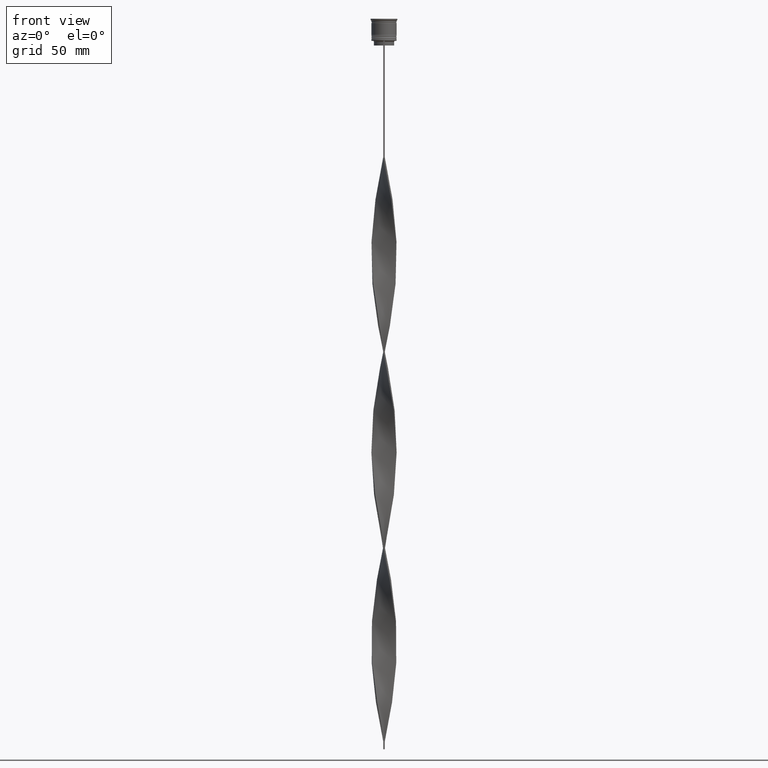
[diagram: clean part render]
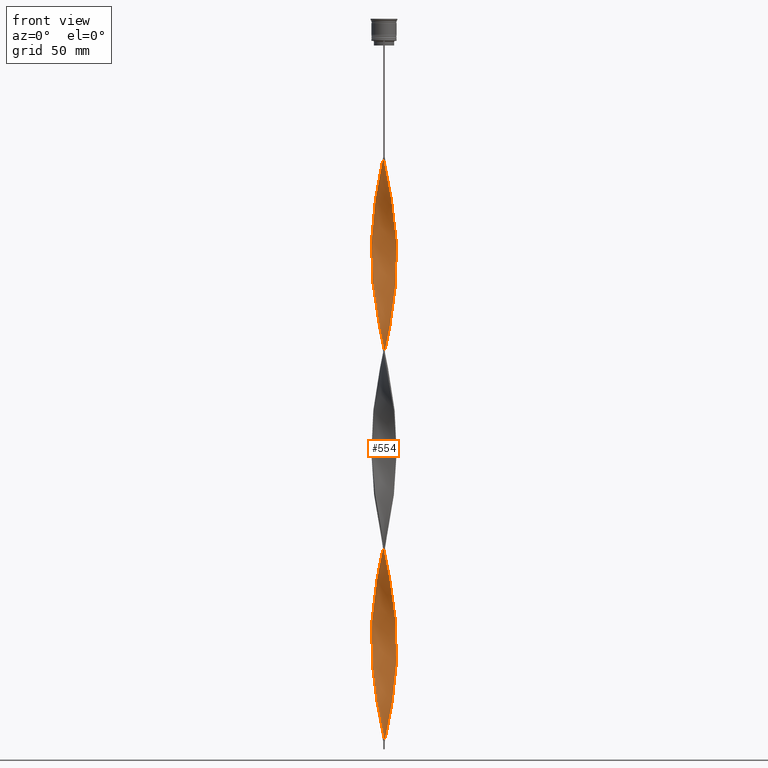
[diagram: same view with one face highlighted and labeled with its STEP entity id]
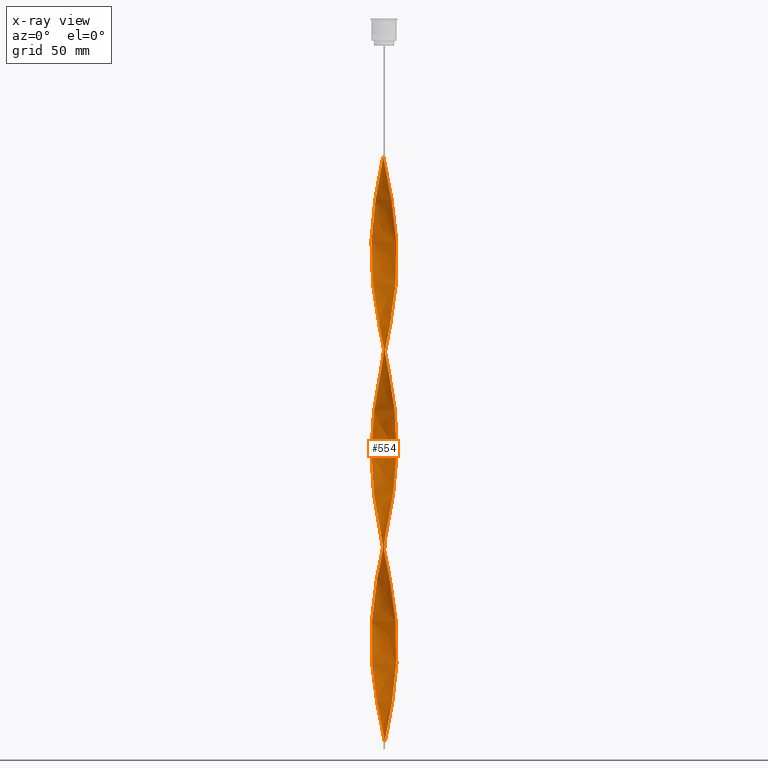
[diagram: x-ray of the same camera — body ghosted, the highlighted face saturated]
A machine part, front view. The second image highlights one B-rep face of the part: STEP entity #554.
The next image is the same camera in x-ray: the body ghosted, the highlighted face saturated — about 0% of this face is hidden behind the body in this view.
In plain terms, the highlighted face is a freeform B-spline surface patch.
Its self-contained STEP definition (entity closure, byte-faithful):
#6 = CARTESIAN_POINT ( 'NONE',  ( -6.536472323464036727, -4.671738810705484468, -300.3840579710145562 ) ) ;
#29 = CARTESIAN_POINT ( 'NONE',  ( -7.155170220385204338, 3.654333464282641941, -257.3695652173913118 ) ) ;
#31 = CARTESIAN_POINT ( 'NONE',  ( -4.134100453396768238, 6.889109332278574804, -106.8188405797101410 ) ) ;
#39 = CARTESIAN_POINT ( 'NONE',  ( 5.436559199960629307, -5.890146353472330176, -238.5507246376811565 ) ) ;
#50 = CARTESIAN_POINT ( 'NONE',  ( -2.639832812930095418, -7.568439913203885538, -324.5797101449275033 ) ) ;
#52 = CARTESIAN_POINT ( 'NONE',  ( -0.4999999999999998890, 7.999999999999996447, -335.3333333333333144 ) ) ;
#58 = CARTESIAN_POINT ( 'NONE',  ( 5.839456248204604627, -5.518275516514857593, -241.2391304347826519 ) ) ;
#69 = CARTESIAN_POINT ( 'NONE',  ( 4.660847909256212951, 6.521234297798380375, -308.4492753623188150 ) ) ;
#76 = CARTESIAN_POINT ( 'NONE',  ( 7.947228946841973674, 1.044773691512637104, -276.1884057971014386 ) ) ;
#88 = CARTESIAN_POINT ( 'NONE',  ( 3.645814369522662357, 7.138489867120505039, -442.8695652173913118 ) ) ;
#92 = CARTESIAN_POINT ( 'NONE',  ( -1.140765448138980176, -7.952940848717247491, -203.6014492753623415 ) ) ;
#95 = CARTESIAN_POINT ( 'NONE',  ( 0.5939902197518079907, -7.993570892838771869, -93.37681159420290555 ) ) ;
#101 = CARTESIAN_POINT ( 'NONE',  ( 4.660847909256212951, 6.521234297798380375, -308.4492753623188150 ) ) ;
#110 = CARTESIAN_POINT ( 'NONE',  ( -3.645814369522656584, 7.138489867120500598, -104.1304347826086882 ) ) ;
#113 = CARTESIAN_POINT ( 'NONE',  ( 0.5939902197518079907, -7.993570892838771869, -340.7101449275362484 ) ) ;
#115 = CARTESIAN_POINT ( 'NONE',  ( 8.018693425164364896, 0.5011683390727713627, -273.4999999999999432 ) ) ;
#118 = CARTESIAN_POINT ( 'NONE',  ( 7.586124921344943317, -2.646001252571964280, -139.0797101449275317 ) ) ;
#134 = CARTESIAN_POINT ( 'NONE',  ( 1.676915525582295841, -7.838236684360910367, -346.0869565217391255 ) ) ;
#141 = CARTESIAN_POINT ( 'NONE',  ( -2.639832812930093198, 7.568439913203879321, -346.0869565217391255 ) ) ;
#149 = CARTESIAN_POINT ( 'NONE',  ( -7.111726286817904530, 3.738176450121948324, -128.3260869565217206 ) ) ;
#156 = CARTESIAN_POINT ( 'NONE',  ( -1.140765448138980176, -7.952940848717247491, -450.9347826086956275 ) ) ;
#158 = CARTESIAN_POINT ( 'NONE',  ( -6.873049228353423246, -4.124462911050403413, -415.9855072463768124 ) ) ;
#179 = CARTESIAN_POINT ( 'NONE',  ( 2.213065603025611949, -7.723532520004569690, -101.4420289855072497 ) ) ;
#195 = CARTESIAN_POINT ( 'NONE',  ( 6.590928236321652811, -4.594592357818173767, -128.3260869565217206 ) ) ;
#205 = CARTESIAN_POINT ( 'NONE',  ( -3.244140533008800897, 7.350249393928931951, -230.4855072463767840 ) ) ;
#214 = CARTESIAN_POINT ( 'NONE',  ( -6.247418983026100214, -5.021927523424156270, -421.3623188405797464 ) ) ;
#222 = CARTESIAN_POINT ( 'NONE',  ( -0.4999999999999998890, -8.000000000000003553, -88.00000000000000000 ) ) ;
#239 = CARTESIAN_POINT ( 'NONE',  ( -6.187964285834326006, -5.095007163610167922, -303.0724637681159379 ) ) ;
#263 = CARTESIAN_POINT ( 'NONE',  ( 6.187964285834324230, 5.095007163610171474, -179.4057971014492807 ) ) ;
#270 = CARTESIAN_POINT ( 'NONE',  ( -7.155170220385199897, -3.654333464282636612, -165.9637681159420595 ) ) ;
#281 = CARTESIAN_POINT ( 'NONE',  ( -7.554502245351254253, -2.734978935174111836, -289.6304347826086882 ) ) ;
#284 = CARTESIAN_POINT ( 'NONE',  ( 1.584676165788138968, 7.857404243742526440, -206.2898550724637516 ) ) ;
#286 = CARTESIAN_POINT ( 'NONE',  ( -7.111726286817905418, 3.738176450121948768, -128.3260869565217206 ) ) ;
#296 = CARTESIAN_POINT ( 'NONE',  ( -7.586124921344937988, -2.646001252571960283, -160.5869565217391823 ) ) ;
#298 = CARTESIAN_POINT ( 'NONE',  ( 8.012249295248937031, 0.5953781837169684898, -155.2101449275362199 ) ) ;
#314 = CARTESIAN_POINT ( 'NONE',  ( -5.903909729730557387, 5.449262689030150320, -246.6159420289854722 ) ) ;
#317 = CARTESIAN_POINT ( 'NONE',  ( -7.875764468519589556, -1.588379043952500513, -155.2101449275362199 ) ) ;
#333 = CARTESIAN_POINT ( 'NONE',  ( -7.554502245351253364, -2.734978935174111836, -289.6304347826086882 ) ) ;
#336 = CARTESIAN_POINT ( 'NONE',  ( -3.645814369522656584, 7.138489867120500598, -104.1304347826086882 ) ) ;
#343 = CARTESIAN_POINT ( 'NONE',  ( -7.856552120720862398, 1.680833937442849368, -139.0797101449275317 ) ) ;
#352 = CARTESIAN_POINT ( 'NONE',  ( -8.015471360206651852, -0.04710492232209864683, -276.1884057971014386 ) ) ;
#360 = CARTESIAN_POINT ( 'NONE',  ( -3.729461898010225429, -7.095147211389621233, -190.1594202898550634 ) ) ;
#377 = CARTESIAN_POINT ( 'NONE',  ( 7.934400707984895718, -1.138106060579907153, -265.4347826086956275 ) ) ;
#385 = CARTESIAN_POINT ( 'NONE',  ( -2.728603068017206645, -7.536890956966740163, -195.5362318840579405 ) ) ;
#393 = CARTESIAN_POINT ( 'NONE',  ( 4.583881302556717330, 6.575563261354193223, -437.4927536231883778 ) ) ;
#395 = CARTESIAN_POINT ( 'NONE',  ( 1.140765448138977733, 7.952940848717247491, -327.2681159420290555 ) ) ;
#401 = CARTESIAN_POINT ( 'NONE',  ( 7.934400707984895718, -1.138106060579907153, -265.4347826086956275 ) ) ;
#412 = CARTESIAN_POINT ( 'NONE',  ( -2.122137340211641021, -7.749009424445339356, -327.2681159420290555 ) ) ;
#415 = CARTESIAN_POINT ( 'NONE',  ( -3.244140533008800009, -7.350249393928923958, -192.8478260869565020 ) ) ;
#418 = CARTESIAN_POINT ( 'NONE',  ( 5.903909729730560052, -5.449262689030147655, -122.9492753623188577 ) ) ;
#421 = CARTESIAN_POINT ( 'NONE',  ( 7.730944694932264660, 2.117190148262227289, -281.5652173913043725 ) ) ;
#430 = CARTESIAN_POINT ( 'NONE',  ( 6.824099305140973293, 4.204957630413717062, -421.3623188405797464 ) ) ;
#438 = CARTESIAN_POINT ( 'NONE',  ( 7.333114266084573174, -3.236577692648032745, -254.6811594202898448 ) ) ;
#442 = CARTESIAN_POINT ( 'NONE',  ( 6.590928236321652811, -4.594592357818173767, -128.3260869565217206 ) ) ;
#447 = CARTESIAN_POINT ( 'NONE',  ( -4.660847909256212063, -6.521234297798381263, -184.7826086956521578 ) ) ;
#455 = CARTESIAN_POINT ( 'NONE',  ( 2.122137340211644130, 7.749009424445339356, -450.9347826086956275 ) ) ;
#458 = CARTESIAN_POINT ( 'NONE',  ( 5.903909729730559164, -5.449262689030147655, -370.2826086956521863 ) ) ;
#460 = CARTESIAN_POINT ( 'NONE',  ( 1.047214991364632919, -7.965799063039709971, -214.3550724637681242 ) ) ;
#473 = CARTESIAN_POINT ( 'NONE',  ( -6.536472323464030509, 4.671738810705480915, -122.9492753623188577 ) ) ;
#477 = CARTESIAN_POINT ( 'NONE',  ( -7.705527183036060102, -2.207906436308479936, -286.9420289855072497 ) ) ;
#478 = CARTESIAN_POINT ( 'NONE',  ( -6.824099305140966187, 4.204957630413713510, -372.9710144927536248 ) ) ;
#484 = CARTESIAN_POINT ( 'NONE',  ( -5.436559199960629307, 5.890146353472331064, -362.2173913043478137 ) ) ;
#500 = CARTESIAN_POINT ( 'NONE',  ( 0.5939902197518079907, -7.993570892838771869, -93.37681159420290555 ) ) ;
#505 = CARTESIAN_POINT ( 'NONE',  ( 1.676915525582294952, 7.838236684360903261, -324.5797101449275033 ) ) ;
#520 = CARTESIAN_POINT ( 'NONE',  ( -7.586124921344937988, -2.646001252571960283, -407.9202898550724399 ) ) ;
#522 = CARTESIAN_POINT ( 'NONE',  ( -7.586124921344937988, -2.646001252571960283, -407.9202898550724399 ) ) ;
#538 = CARTESIAN_POINT ( 'NONE',  ( 0.4999999999999989453, -7.999999999999996447, -458.9999999999999432 ) ) ;
#554 = ADVANCED_FACE ( 'NONE', ( #3340 ), #3353, .T. ) ;
#581 = CARTESIAN_POINT ( 'NONE',  ( 0.04721499136463627733, -8.034200936960292694, -338.0217391304347530 ) ) ;
#585 = CARTESIAN_POINT ( 'NONE',  ( -5.106912555500778161, 6.202423566746448458, -241.2391304347826235 ) ) ;
#598 = EDGE_CURVE ( 'NONE', #2487, #1923, #1904, .T. ) ;
#607 = CARTESIAN_POINT ( 'NONE',  ( -7.111726286817911635, -3.738176450121949657, -295.0072463768116222 ) ) ;
#609 = CARTESIAN_POINT ( 'NONE',  ( -6.824099305140966187, 4.204957630413713510, -125.6376811594202820 ) ) ;
#625 = CARTESIAN_POINT ( 'NONE',  ( 7.111726286817910747, 3.738176450121950101, -171.3405797101449366 ) ) ;
#628 = CARTESIAN_POINT ( 'NONE',  ( -7.947228946841973674, -1.044773691512636438, -152.5217391304347530 ) ) ;
#637 = CARTESIAN_POINT ( 'NONE',  ( -7.934400707984895718, 1.138106060579909817, -141.7681159420289703 ) ) ;
#638 = CARTESIAN_POINT ( 'NONE',  ( 7.856552120720867727, 1.680833937442848480, -160.5869565217391823 ) ) ;
#652 = CARTESIAN_POINT ( 'NONE',  ( -7.856552120720868615, -1.680833937442847592, -284.2536231884058111 ) ) ;
#669 = CARTESIAN_POINT ( 'NONE',  ( 7.947228946841980779, -1.044773691512637548, -394.4782608695651902 ) ) ;
#673 = CARTESIAN_POINT ( 'NONE',  ( -1.676915525582294064, 7.838236684360910367, -222.4202898550724399 ) ) ;
#682 = CARTESIAN_POINT ( 'NONE',  ( 4.214783263011647740, 6.840045028850321174, -311.1376811594204241 ) ) ;
#683 = CARTESIAN_POINT ( 'NONE',  ( 4.214783263011650405, -6.840045028850329167, -112.1956521739130466 ) ) ;
#690 = CARTESIAN_POINT ( 'NONE',  ( 8.018693425164372002, -0.5011683390727734722, -397.1666666666666288 ) ) ;
#692 = CARTESIAN_POINT ( 'NONE',  ( 6.247418983026105543, -5.021927523424159823, -372.9710144927536248 ) ) ;
#693 = CARTESIAN_POINT ( 'NONE',  ( 0.5000000000000008882, 8.000000000000003553, -458.9999999999999432 ) ) ;
#695 = CARTESIAN_POINT ( 'NONE',  ( 4.583881302556708448, -6.575563261354191447, -233.1739130434782510 ) ) ;
#702 = CARTESIAN_POINT ( 'NONE',  ( 2.728603068017207534, 7.536890956966740163, -319.2028985507245693 ) ) ;
#714 = CARTESIAN_POINT ( 'NONE',  ( 7.934400707984902823, 1.138106060579908485, -405.2318840579709445 ) ) ;
#716 = CARTESIAN_POINT ( 'NONE',  ( -0.5939902197518075466, -7.993570892838764763, -206.2898550724637516 ) ) ;
#724 = CARTESIAN_POINT ( 'NONE',  ( 6.824099305140966187, -4.204957630413714398, -249.3043478260869392 ) ) ;
#736 = CARTESIAN_POINT ( 'NONE',  ( -1.047214991364639802, -7.965799063039713523, -332.6449275362318758 ) ) ;
#738 = CARTESIAN_POINT ( 'NONE',  ( 7.586124921344937988, 2.646001252571958950, -284.2536231884058111 ) ) ;
#743 = CARTESIAN_POINT ( 'NONE',  ( 7.705527183036052996, -2.207906436308480380, -260.0579710144927503 ) ) ;
#748 = CARTESIAN_POINT ( 'NONE',  ( 6.187964285834324230, 5.095007163610171474, -179.4057971014492807 ) ) ;
#757 = CARTESIAN_POINT ( 'NONE',  ( -5.903909729730553835, -5.449262689030142326, -176.7173913043478137 ) ) ;
#763 = CARTESIAN_POINT ( 'NONE',  ( -5.106912555500773720, -6.202423566746443129, -182.0942028985507477 ) ) ;
#772 = CARTESIAN_POINT ( 'NONE',  ( 5.033662151716659316, 6.262017190429808977, -434.8043478260869961 ) ) ;
#777 = CARTESIAN_POINT ( 'NONE',  ( -3.157528285648551147, -7.387870401962433498, -321.8913043478260647 ) ) ;
#780 = CARTESIAN_POINT ( 'NONE',  ( 3.157528285648546706, -7.387870401962427280, -225.1086956521739353 ) ) ;
#783 = CARTESIAN_POINT ( 'NONE',  ( 7.333114266084581168, 3.236577692648030968, -168.6521739130434696 ) ) ;
#788 = CARTESIAN_POINT ( 'NONE',  ( -2.122137340211640577, 7.749009424445332250, -343.3985507246376869 ) ) ;
#792 = CARTESIAN_POINT ( 'NONE',  ( 4.583881302556717330, 6.575563261354193223, -190.1594202898550634 ) ) ;
#796 = CARTESIAN_POINT ( 'NONE',  ( 4.134100453396771790, 6.889109332278581910, -440.1811594202897595 ) ) ;
#801 = CARTESIAN_POINT ( 'NONE',  ( -7.875764468519589556, -1.588379043952500513, -402.5434782608696196 ) ) ;
#810 = CARTESIAN_POINT ( 'NONE',  ( -8.018693425164372002, 0.5011683390727744714, -273.4999999999999432 ) ) ;
#814 = CARTESIAN_POINT ( 'NONE',  ( 6.187964285834324230, 5.095007163610171474, -426.7391304347826235 ) ) ;
#818 = CARTESIAN_POINT ( 'NONE',  ( -0.5939902197518075466, -7.993570892838764763, -453.6231884057970660 ) ) ;
#841 = CARTESIAN_POINT ( 'NONE',  ( -2.213065603025611505, -7.723532520004561697, -445.5579710144927503 ) ) ;
#844 = CARTESIAN_POINT ( 'NONE',  ( 5.505411142615667330, -5.825843127888297168, -120.2608695652173907 ) ) ;
#849 = CARTESIAN_POINT ( 'NONE',  ( -6.536472323464030509, 4.671738810705480915, -370.2826086956521863 ) ) ;
#850 = CARTESIAN_POINT ( 'NONE',  ( -5.505411142615663778, -5.825843127888290951, -426.7391304347826235 ) ) ;
#868 = CARTESIAN_POINT ( 'NONE',  ( -4.583881302556714665, -6.575563261354195888, -313.8260869565216922 ) ) ;
#869 = CARTESIAN_POINT ( 'NONE',  ( -8.018693425164364896, -0.5011683390727723619, -397.1666666666666856 ) ) ;
#871 = CARTESIAN_POINT ( 'NONE',  ( 7.370647570865074272, -3.150167358427301334, -136.3913043478260931 ) ) ;
#878 = CARTESIAN_POINT ( 'NONE',  ( 1.584676165788138968, 7.857404243742526440, -206.2898550724637516 ) ) ;
#890 = CARTESIAN_POINT ( 'NONE',  ( 5.106912555500779050, -6.202423566746448458, -364.9057971014492523 ) ) ;
#891 = CARTESIAN_POINT ( 'NONE',  ( -6.873049228353423246, -4.124462911050403413, -415.9855072463768124 ) ) ;
#901 = ORIENTED_EDGE ( 'NONE', *, *, #3587, .T. ) ;
#939 = CARTESIAN_POINT ( 'NONE',  ( 7.586124921344943317, -2.646001252571964280, -386.4130434782609882 ) ) ;
#942 = CARTESIAN_POINT ( 'NONE',  ( 7.934400707984902823, 1.138106060579908485, -157.8985507246376585 ) ) ;
#944 = CARTESIAN_POINT ( 'NONE',  ( -5.033662151716653987, 6.262017190429803648, -112.1956521739130466 ) ) ;
#952 = CARTESIAN_POINT ( 'NONE',  ( -7.730944694932262884, -2.117190148262229510, -157.8985507246376585 ) ) ;
#954 = CARTESIAN_POINT ( 'NONE',  ( 7.947228946841980779, -1.044773691512637548, -147.1449275362318758 ) ) ;
#963 = CARTESIAN_POINT ( 'NONE',  ( 7.856552120720868615, 1.680833937442848480, -160.5869565217391539 ) ) ;
#968 = EDGE_LOOP ( 'NONE', ( #3988, #901, #2623, #1948 ) ) ;
#973 = CARTESIAN_POINT ( 'NONE',  ( 6.247418983026105543, -5.021927523424159823, -125.6376811594202820 ) ) ;
#984 = CARTESIAN_POINT ( 'NONE',  ( 5.839456248204609956, 5.518275516514862034, -182.0942028985507477 ) ) ;
#996 = CARTESIAN_POINT ( 'NONE',  ( 3.729461898010225873, -7.095147211389628339, -109.5072463768115796 ) ) ;
#1012 = CARTESIAN_POINT ( 'NONE',  ( -2.728603068017204425, 7.536890956966749044, -227.7971014492753454 ) ) ;
#1021 = CARTESIAN_POINT ( 'NONE',  ( 1.047214991364632919, -7.965799063039709971, -214.3550724637681242 ) ) ;
#1022 = CARTESIAN_POINT ( 'NONE',  ( 3.244140533008801786, -7.350249393928931063, -106.8188405797101268 ) ) ;
#1032 = CARTESIAN_POINT ( 'NONE',  ( 7.155170220385205226, -3.654333464282639721, -381.0362318840579974 ) ) ;
#1034 = CARTESIAN_POINT ( 'NONE',  ( -4.214783263011647740, -6.840045028850322950, -187.4710144927535964 ) ) ;
#1040 = CARTESIAN_POINT ( 'NONE',  ( 3.645814369522654363, -7.138489867120501486, -227.7971014492753454 ) ) ;
#1048 = CARTESIAN_POINT ( 'NONE',  ( 7.111726286817910747, 3.738176450121950101, -418.6739130434783078 ) ) ;
#1050 = CARTESIAN_POINT ( 'NONE',  ( 7.875764468519596662, -1.588379043952502734, -391.7898550724637516 ) ) ;
#1053 = CARTESIAN_POINT ( 'NONE',  ( 2.639832812930090977, -7.568439913203879321, -222.4202898550724399 ) ) ;
#1061 = CARTESIAN_POINT ( 'NONE',  ( 4.583881302556708448, -6.575563261354191447, -233.1739130434782510 ) ) ;
#1067 = CARTESIAN_POINT ( 'NONE',  ( 7.111726286817910747, 3.738176450121950101, -171.3405797101449366 ) ) ;
#1073 = CARTESIAN_POINT ( 'NONE',  ( 7.856552120720867727, 1.680833937442848480, -407.9202898550724399 ) ) ;
#1077 = CARTESIAN_POINT ( 'NONE',  ( 7.333114266084581168, 3.236577692648030968, -415.9855072463768124 ) ) ;
#1079 = CARTESIAN_POINT ( 'NONE',  ( 0.4999999999999989453, -7.999999999999996447, -211.6666666666666572 ) ) ;
#1087 = CARTESIAN_POINT ( 'NONE',  ( 7.586124921344937988, 2.646001252571958950, -284.2536231884058111 ) ) ;
#1095 = CARTESIAN_POINT ( 'NONE',  ( -5.436559199960629307, 5.890146353472331064, -114.8840579710144851 ) ) ;
#1098 = CARTESIAN_POINT ( 'NONE',  ( 7.111726286817910747, 3.738176450121950101, -418.6739130434783078 ) ) ;
#1100 = CARTESIAN_POINT ( 'NONE',  ( 5.903909729730553835, 5.449262689030141438, -300.3840579710145562 ) ) ;
#1106 = CARTESIAN_POINT ( 'NONE',  ( 7.333114266084573174, -3.236577692648032745, -254.6811594202898448 ) ) ;
#1110 = CARTESIAN_POINT ( 'NONE',  ( 5.436559199960635524, 5.890146353472334617, -184.7826086956521578 ) ) ;
#1116 = CARTESIAN_POINT ( 'NONE',  ( 2.639832812930094530, 7.568439913203885538, -448.2463768115941889 ) ) ;
#1120 = CARTESIAN_POINT ( 'NONE',  ( 7.856552120720868615, 1.680833937442848480, -407.9202898550724399 ) ) ;
#1122 = CARTESIAN_POINT ( 'NONE',  ( -7.856552120720867727, -1.680833937442847592, -284.2536231884058111 ) ) ;
#1123 = CARTESIAN_POINT ( 'NONE',  ( -6.590928236321648370, -4.594592357818170214, -171.3405797101449366 ) ) ;
#1125 = CARTESIAN_POINT ( 'NONE',  ( -7.705527183036052996, 2.207906436308479492, -383.7246376811593791 ) ) ;
#1131 = CARTESIAN_POINT ( 'NONE',  ( -5.505411142615667330, 5.825843127888297168, -243.9275362318840337 ) ) ;
#1144 = CARTESIAN_POINT ( 'NONE',  ( -4.583881302556711113, 6.575563261354189670, -356.8405797101449366 ) ) ;
#1163 = CARTESIAN_POINT ( 'NONE',  ( -7.730944694932262884, -2.117190148262229510, -405.2318840579709445 ) ) ;
#1173 = CARTESIAN_POINT ( 'NONE',  ( -6.873049228353427686, 4.124462911050410518, -254.6811594202898448 ) ) ;
#1180 = CARTESIAN_POINT ( 'NONE',  ( -6.187964285834317124, 5.095007163610168810, -367.5942028985506909 ) ) ;
#1182 = CARTESIAN_POINT ( 'NONE',  ( -6.590928236321648370, -4.594592357818170214, -418.6739130434783078 ) ) ;
#1184 = CARTESIAN_POINT ( 'NONE',  ( 4.660847909256214727, -6.521234297798388369, -114.8840579710144851 ) ) ;
#1188 = CARTESIAN_POINT ( 'NONE',  ( -2.213065603025611949, -7.723532520004562585, -445.5579710144927503 ) ) ;
#1204 = CARTESIAN_POINT ( 'NONE',  ( 2.728603068017206645, -7.536890956966748156, -351.4637681159420595 ) ) ;
#1207 = CARTESIAN_POINT ( 'NONE',  ( -7.370647570865068055, -3.150167358427297781, -410.6086956521738216 ) ) ;
#1218 = CARTESIAN_POINT ( 'NONE',  ( -4.214783263011649517, 6.840045028850329167, -235.8623188405797180 ) ) ;
#1229 = CARTESIAN_POINT ( 'NONE',  ( -7.947228946841973674, -1.044773691512636438, -399.8550724637680673 ) ) ;
#1255 = CARTESIAN_POINT ( 'NONE',  ( 0.4999999999999989453, -7.999999999999996447, -458.9999999999999432 ) ) ;
#1271 = EDGE_CURVE ( 'NONE', #2487, #2898, #1708, .T. ) ;
#1274 = CARTESIAN_POINT ( 'NONE',  ( 6.873049228353429463, -4.124462911050406966, -378.3478260869565020 ) ) ;
#1279 = CARTESIAN_POINT ( 'NONE',  ( 0.5000000000000008882, 8.000000000000003553, -211.6666666666666572 ) ) ;
#1300 = CARTESIAN_POINT ( 'NONE',  ( -5.436559199960636413, -5.890146353472333729, -308.4492753623188150 ) ) ;
#1304 = CARTESIAN_POINT ( 'NONE',  ( -4.583881302556714665, -6.575563261354195888, -313.8260869565216922 ) ) ;
#1307 = CARTESIAN_POINT ( 'NONE',  ( -8.012249295248929926, 0.5953781837169687119, -144.4565217391304657 ) ) ;
#1314 = CARTESIAN_POINT ( 'NONE',  ( -7.947228946841973674, -1.044773691512636438, -152.5217391304347530 ) ) ;
#1323 = CARTESIAN_POINT ( 'NONE',  ( -6.247418983026105543, 5.021927523424160711, -249.3043478260869392 ) ) ;
#1325 = CARTESIAN_POINT ( 'NONE',  ( -7.586124921344937988, -2.646001252571960283, -160.5869565217391539 ) ) ;
#1342 = CARTESIAN_POINT ( 'NONE',  ( 1.047214991364638914, 7.965799063039713523, -208.9782608695652186 ) ) ;
#1353 = CARTESIAN_POINT ( 'NONE',  ( 1.140765448138979288, -7.952940848717255484, -96.06521739130434412 ) ) ;
#1368 = CARTESIAN_POINT ( 'NONE',  ( 4.134100453396771790, 6.889109332278581022, -192.8478260869565020 ) ) ;
#1370 = CARTESIAN_POINT ( 'NONE',  ( 2.122137340211640133, -7.749009424445332250, -219.7318840579710297 ) ) ;
#1376 = CARTESIAN_POINT ( 'NONE',  ( 6.536472323464028733, -4.671738810705482692, -246.6159420289854722 ) ) ;
#1385 = CARTESIAN_POINT ( 'NONE',  ( 1.140765448138979510, -7.952940848717254596, -343.3985507246376869 ) ) ;
#1388 = CARTESIAN_POINT ( 'NONE',  ( 6.873049228353425910, 4.124462911050398972, -292.3188405797101268 ) ) ;
#1402 = CARTESIAN_POINT ( 'NONE',  ( -1.584676165788143409, -7.857404243742526440, -329.9565217391304373 ) ) ;
#1405 = CARTESIAN_POINT ( 'NONE',  ( 5.106912555500778161, 6.202423566746439576, -305.7608695652173765 ) ) ;
#1425 = CARTESIAN_POINT ( 'NONE',  ( 6.824099305140973293, 4.204957630413717062, -421.3623188405797464 ) ) ;
#1427 = CARTESIAN_POINT ( 'NONE',  ( -2.728603068017206645, -7.536890956966740163, -195.5362318840579405 ) ) ;
#1435 = CARTESIAN_POINT ( 'NONE',  ( -5.505411142615663778, -5.825843127888290951, -179.4057971014492807 ) ) ;
#1441 = CARTESIAN_POINT ( 'NONE',  ( 5.839456248204610844, 5.518275516514861145, -182.0942028985507477 ) ) ;
#1448 = CARTESIAN_POINT ( 'NONE',  ( 1.047214991364638914, 7.965799063039713523, -456.3115942028985614 ) ) ;
#1450 = CARTESIAN_POINT ( 'NONE',  ( -3.729461898010225429, -7.095147211389621233, -190.1594202898550634 ) ) ;
#1464 = CARTESIAN_POINT ( 'NONE',  ( 6.536472323464036727, 4.671738810705485356, -424.0507246376811281 ) ) ;
#1468 = CARTESIAN_POINT ( 'NONE',  ( -7.155170220385199897, -3.654333464282636612, -413.2971014492753739 ) ) ;
#1472 = CARTESIAN_POINT ( 'NONE',  ( -3.157528285648546706, 7.387870401962427280, -348.7753623188405072 ) ) ;
#1477 = CARTESIAN_POINT ( 'NONE',  ( -7.730944694932269989, 2.117190148262231286, -265.4347826086956275 ) ) ;
#1484 = CARTESIAN_POINT ( 'NONE',  ( -7.333114266084574950, 3.236577692648028748, -131.0144927536231876 ) ) ;
#1491 = CARTESIAN_POINT ( 'NONE',  ( -5.033662151716653987, 6.262017190429803648, -359.5289855072463752 ) ) ;
#1499 = CARTESIAN_POINT ( 'NONE',  ( -1.047214991364636028, 7.965799063039706418, -338.0217391304347530 ) ) ;
#1502 = CARTESIAN_POINT ( 'NONE',  ( -4.660847909256214727, 6.521234297798387480, -238.5507246376811565 ) ) ;
#1509 = CARTESIAN_POINT ( 'NONE',  ( -3.645814369522656584, 7.138489867120500598, -351.4637681159420595 ) ) ;
#1511 = CARTESIAN_POINT ( 'NONE',  ( -7.947228946841973674, -1.044773691512636438, -399.8550724637680673 ) ) ;
#1521 = CARTESIAN_POINT ( 'NONE',  ( 2.639832812930094530, 7.568439913203885538, -200.9130434782608745 ) ) ;
#1529 = CARTESIAN_POINT ( 'NONE',  ( -7.856552120720863286, 1.680833937442849368, -386.4130434782609314 ) ) ;
#1537 = CARTESIAN_POINT ( 'NONE',  ( -0.04721499136463833818, -8.034200936960285588, -456.3115942028985614 ) ) ;
#1551 = CARTESIAN_POINT ( 'NONE',  ( -1.584676165788143409, -7.857404243742526440, -329.9565217391304373 ) ) ;
#1568 = CARTESIAN_POINT ( 'NONE',  ( -5.033662151716653987, 6.262017190429803648, -112.1956521739130466 ) ) ;
#1577 = CARTESIAN_POINT ( 'NONE',  ( 3.244140533008801786, -7.350249393928931063, -354.1521739130434980 ) ) ;
#1588 = CARTESIAN_POINT ( 'NONE',  ( -7.705527183036052996, 2.207906436308479492, -136.3913043478260931 ) ) ;
#1598 = CARTESIAN_POINT ( 'NONE',  ( 6.590928236321652811, -4.594592357818173767, -375.6594202898551771 ) ) ;
#1600 = CARTESIAN_POINT ( 'NONE',  ( -7.333114266084582944, -3.236577692648026527, -292.3188405797101268 ) ) ;
#1608 = CARTESIAN_POINT ( 'NONE',  ( -7.875764468519589556, -1.588379043952500291, -155.2101449275362199 ) ) ;
#1618 = CARTESIAN_POINT ( 'NONE',  ( -5.839456248204613509, -5.518275516514857593, -305.7608695652173196 ) ) ;
#1621 = CARTESIAN_POINT ( 'NONE',  ( 5.436559199960635524, 5.890146353472334617, -184.7826086956521578 ) ) ;
#1625 = CARTESIAN_POINT ( 'NONE',  ( -7.333114266084574950, 3.236577692648028748, -131.0144927536231876 ) ) ;
#1648 = CARTESIAN_POINT ( 'NONE',  ( -6.590928236321652811, 4.594592357818173767, -251.9927536231884631 ) ) ;
#1650 = CARTESIAN_POINT ( 'NONE',  ( -7.730944694932262884, -2.117190148262229510, -157.8985507246376585 ) ) ;
#1666 = CARTESIAN_POINT ( 'NONE',  ( -6.824099305140974181, -4.204957630413716174, -297.6956521739130039 ) ) ;
#1669 = CARTESIAN_POINT ( 'NONE',  ( -7.155170220385199897, -3.654333464282636612, -165.9637681159420595 ) ) ;
#1678 = CARTESIAN_POINT ( 'NONE',  ( 0.04721499136463627733, -8.034200936960292694, -90.68840579710145278 ) ) ;
#1686 = CARTESIAN_POINT ( 'NONE',  ( 7.705527183036060102, 2.207906436308480380, -410.6086956521738216 ) ) ;
#1688 = CARTESIAN_POINT ( 'NONE',  ( -8.012249295248937031, -0.5953781837169641600, -278.8768115942028771 ) ) ;
#1698 = CARTESIAN_POINT ( 'NONE',  ( -0.5939902197518075466, -7.993570892838764763, -206.2898550724637516 ) ) ;
#1708 =( BOUNDED_CURVE ( )  B_SPLINE_CURVE ( 2, ( #3495, #2499, #500, #3845, #1840, #179, #2545, #2831, #4177, #1856, #1184, #4197, #844, #2176, #3518, #195, #2523, #3872, #871, #2201, #3893, #3660, #2289, #2332, #2637, #2269, #942, #963, #2593, #3019, #3351, #625, #2681, #3260, #263, #984, #1621, #3633, #1966, #1368, #4007, #2619, #3305, #2977, #284, #1342, #1279, #4029, #4317, #3963, #673, #2010, #1012, #3983, #2998, #3281, #2245, #585, #3585, #314, #1323, #1648, #3681, #29, #3942, #2926, #3330, #2312, #3610, #4270, #352, #1688, #1920, #652, #1991, #333, #1600, #607, #1666, #6, #1945, #2656, #2954, #4297, #1304, #3782, #1713, #777, #50, #412, #1402, #736, #1748, #3396, #113, #1385, #134, #3079, #2717, #2114, #3455, #2701, #4047, #2392, #2434, #458, #692, #3044, #2744, #1032, #4067, #2764, #1795, #1050, #2369, #2087, #4093, #3722, #714, #1120, #3128, #3413, #1077, #1098, #1425, #1464, #3700, #2052, #3744, #2413, #393, #2351, #88, #2069, #2784, #1731, #2030, #1448, #3765 ),
 .UNSPECIFIED., .F., .T. ) 
 B_SPLINE_CURVE_WITH_KNOTS ( ( 3, 2, 2, 2, 2, 2, 2, 2, 2, 2, 2, 2, 2, 2, 2, 2, 2, 2, 2, 2, 2, 2, 2, 2, 2, 2, 2, 2, 2, 2, 2, 2, 2, 2, 2, 2, 2, 2, 2, 2, 2, 2, 2, 2, 2, 2, 2, 2, 2, 2, 2, 2, 2, 2, 2, 2, 2, 2, 2, 2, 2, 2, 2, 2, 2, 2, 2, 2, 2, 3 ),
 ( 0.000000000000000000, 0.01086956521739130405, 0.02173913043478260809, 0.03260869565217391214, 0.04347826086956521618, 0.05434782608695652023, 0.06521739130434782428, 0.07608695652173913526, 0.08695652173913043237, 0.09782608695652174335, 0.1086956521739130405, 0.1195652173913043653, 0.1304347826086956486, 0.1413043478260869457, 0.1521739130434782705, 0.1630434782608695676, 0.1739130434782608647, 0.1847826086956521896, 0.1956521739130434867, 0.2065217391304347838, 0.2173913043478260809, 0.2282608695652173780, 0.2391304347826087306, 0.2500000000000000000, 0.2608695652173912971, 0.2717391304347825942, 0.2826086956521738913, 0.2934782608695652439, 0.3043478260869565410, 0.3152173913043478382, 0.3260869565217391353, 0.3369565217391304324, 0.3478260869565217295, 0.3586956521739130266, 0.3695652173913043792, 0.3804347826086956208, 0.3913043478260869734, 0.4021739130434782705, 0.4130434782608695676, 0.4239130434782609202, 0.4347826086956521618, 0.4456521739130434590, 0.4565217391304347561, 0.4673913043478261087, 0.4782608695652174613, 0.4891304347826087029, 0.5000000000000000000, 0.5108695652173913526, 0.5217391304347825942, 0.5326086956521739468, 0.5434782608695651884, 0.5543478260869565410, 0.5652173913043477826, 0.5760869565217391353, 0.5869565217391304879, 0.5978260869565217295, 0.6086956521739130821, 0.6195652173913043237, 0.6304347826086956763, 0.6413043478260869179, 0.6521739130434782705, 0.6630434782608695121, 0.6739130434782608647, 0.6847826086956522174, 0.6956521739130434590, 0.7065217391304349226, 0.7173913043478260532, 0.7282608695652174058, 0.7391304347826087584, 0.7500000000000000000 ),
 .UNSPECIFIED. ) 
 CURVE ( )  GEOMETRIC_REPRESENTATION_ITEM ( )  RATIONAL_B_SPLINE_CURVE ( ( 1.000000000000000000, 0.9976687691905391508, 1.000000000000000000, 0.9976687691905391508, 1.000000000000000000, 0.9976687691905391508, 1.000000000000000000, 0.9976687691905391508, 1.000000000000000000, 0.9976687691905391508, 1.000000000000000000, 0.9976687691905391508, 1.000000000000000000, 0.9976687691905391508, 1.000000000000000000, 0.9976687691905391508, 1.000000000000000000, 0.9976687691905391508, 1.000000000000000000, 0.9976687691905391508, 1.000000000000000000, 0.9976687691905391508, 1.000000000000000000, 0.9976687691905391508, 1.000000000000000000, 0.9976687691905391508, 1.000000000000000000, 0.9976687691905391508, 1.000000000000000000, 0.9976687691905391508, 1.000000000000000000, 0.9976687691905391508, 1.000000000000000000, 0.9976687691905391508, 1.000000000000000000, 0.9976687691905391508, 1.000000000000000000, 0.9976687691905391508, 1.000000000000000000, 0.9976687691905391508, 1.000000000000000000, 0.9976687691905391508, 1.000000000000000000, 0.9976687691905391508, 1.000000000000000000, 0.9976687691905391508, 1.000000000000000000, 0.9976687691905391508, 1.000000000000000000, 0.9976687691905391508, 1.000000000000000000, 0.9976687691905391508, 1.000000000000000000, 0.9976687691905391508, 1.000000000000000000, 0.9976687691905391508, 1.000000000000000000, 0.9976687691905391508, 1.000000000000000000, 0.9976687691905391508, 1.000000000000000000, 0.9976687691905391508, 1.000000000000000000, 0.9976687691905391508, 1.000000000000000000, 0.9976687691905391508, 1.000000000000000000, 0.9976687691905391508, 1.000000000000000000, 0.9976687691905391508, 1.000000000000000000, 0.9976687691905391508, 1.000000000000000000, 0.9976687691905391508, 1.000000000000000000, 0.9976687691905391508, 1.000000000000000000, 0.9976687691905391508, 1.000000000000000000, 0.9976687691905391508, 1.000000000000000000, 0.9976687691905391508, 1.000000000000000000, 0.9976687691905391508, 1.000000000000000000, 0.9976687691905391508, 1.000000000000000000, 0.9976687691905391508, 1.000000000000000000, 0.9976687691905391508, 1.000000000000000000, 0.9976687691905391508, 1.000000000000000000, 0.9976687691905391508, 1.000000000000000000, 0.9976687691905391508, 1.000000000000000000, 0.9976687691905391508, 1.000000000000000000, 0.9976687691905391508, 1.000000000000000000, 0.9976687691905391508, 1.000000000000000000, 0.9976687691905391508, 1.000000000000000000, 0.9976687691905391508, 1.000000000000000000, 0.9976687691905391508, 1.000000000000000000, 0.9976687691905391508, 1.000000000000000000, 0.9976687691905391508, 1.000000000000000000, 0.9976687691905391508, 1.000000000000000000, 0.9976687691905391508, 1.000000000000000000, 0.9976687691905391508, 1.000000000000000000, 0.9976687691905391508, 1.000000000000000000, 0.9976687691905391508, 1.000000000000000000, 0.9976687691905391508, 1.000000000000000000, 0.9976687691905391508, 1.000000000000000000, 0.9976687691905391508, 1.000000000000000000, 0.9976687691905391508, 1.000000000000000000, 0.9976687691905391508, 1.000000000000000000, 0.9976687691905391508, 1.000000000000000000, 0.9976687691905391508, 1.000000000000000000, 0.9976687691905391508, 1.000000000000000000 ) ) 
 REPRESENTATION_ITEM ( '' )  );
#1709 = CARTESIAN_POINT ( 'NONE',  ( 0.4999999999999989453, -7.999999999999996447, -458.9999999999999432 ) ) ;
#1713 = CARTESIAN_POINT ( 'NONE',  ( -3.645814369522663245, -7.138489867120505039, -319.2028985507245693 ) ) ;
#1715 = CARTESIAN_POINT ( 'NONE',  ( 7.370647570865068055, 3.150167358427297337, -286.9420289855072497 ) ) ;
#1722 = CARTESIAN_POINT ( 'NONE',  ( -1.676915525582294064, -7.838236684360903261, -200.9130434782608745 ) ) ;
#1731 = CARTESIAN_POINT ( 'NONE',  ( 2.122137340211643686, 7.749009424445339356, -450.9347826086956275 ) ) ;
#1733 = CARTESIAN_POINT ( 'NONE',  ( -1.584676165788137636, 7.857404243742519334, -340.7101449275362484 ) ) ;
#1738 = CARTESIAN_POINT ( 'NONE',  ( 6.187964285834317124, -5.095007163610168810, -243.9275362318840337 ) ) ;
#1748 = CARTESIAN_POINT ( 'NONE',  ( -0.4999999999999998890, -8.000000000000003553, -335.3333333333333144 ) ) ;
#1750 = CARTESIAN_POINT ( 'NONE',  ( 7.111726286817905418, -3.738176450121948768, -251.9927536231884631 ) ) ;
#1753 = CARTESIAN_POINT ( 'NONE',  ( 7.155170220385205226, -3.654333464282639721, -133.7028985507246546 ) ) ;
#1757 = CARTESIAN_POINT ( 'NONE',  ( 5.106912555500778161, 6.202423566746439576, -305.7608695652173196 ) ) ;
#1769 = CARTESIAN_POINT ( 'NONE',  ( 1.584676165788138968, 7.857404243742526440, -453.6231884057970660 ) ) ;
#1776 = CARTESIAN_POINT ( 'NONE',  ( 5.505411142615667330, 5.825843127888289175, -303.0724637681159379 ) ) ;
#1780 = CARTESIAN_POINT ( 'NONE',  ( 6.873049228353429463, -4.124462911050406966, -131.0144927536231876 ) ) ;
#1785 = CARTESIAN_POINT ( 'NONE',  ( 5.033662151716653099, -6.262017190429803648, -235.8623188405797180 ) ) ;
#1789 = CARTESIAN_POINT ( 'NONE',  ( -6.247418983026105543, 5.021927523424160711, -249.3043478260869392 ) ) ;
#1795 = CARTESIAN_POINT ( 'NONE',  ( 7.730944694932269989, -2.117190148262233951, -389.1014492753622562 ) ) ;
#1797 = CARTESIAN_POINT ( 'NONE',  ( -1.047214991364635805, 7.965799063039706418, -338.0217391304347530 ) ) ;
#1808 = CARTESIAN_POINT ( 'NONE',  ( -1.676915525582294064, 7.838236684360910367, -222.4202898550724399 ) ) ;
#1812 = CARTESIAN_POINT ( 'NONE',  ( -3.157528285648546706, 7.387870401962427280, -101.4420289855072497 ) ) ;
#1816 = CARTESIAN_POINT ( 'NONE',  ( -7.705527183036052996, 2.207906436308479492, -383.7246376811593791 ) ) ;
#1821 = CARTESIAN_POINT ( 'NONE',  ( 1.140765448138977511, 7.952940848717248379, -327.2681159420290555 ) ) ;
#1825 = CARTESIAN_POINT ( 'NONE',  ( -0.04721499136463313401, 8.034200936960292694, -214.3550724637681242 ) ) ;
#1840 = CARTESIAN_POINT ( 'NONE',  ( 1.676915525582295841, -7.838236684360910367, -98.75362318840578268 ) ) ;
#1854 = CARTESIAN_POINT ( 'NONE',  ( -3.244140533008800009, -7.350249393928923958, -440.1811594202898164 ) ) ;
#1856 = CARTESIAN_POINT ( 'NONE',  ( 4.214783263011651293, -6.840045028850329167, -112.1956521739130466 ) ) ;
#1860 = CARTESIAN_POINT ( 'NONE',  ( 0.4999999999999989453, -7.999999999999996447, -458.9999999999999432 ) ) ;
#1865 = CARTESIAN_POINT ( 'NONE',  ( -0.5939902197518064364, 7.993570892838771869, -217.0434782608695627 ) ) ;
#1873 = CARTESIAN_POINT ( 'NONE',  ( -6.536472323464036727, -4.671738810705484468, -300.3840579710144993 ) ) ;
#1882 = CARTESIAN_POINT ( 'NONE',  ( -1.140765448138979954, -7.952940848717248379, -450.9347826086956275 ) ) ;
#1895 = CARTESIAN_POINT ( 'NONE',  ( -3.157528285648551147, -7.387870401962433498, -321.8913043478260647 ) ) ;
#1904 = LINE ( 'NONE', #222, #2504 ) ;
#1920 = CARTESIAN_POINT ( 'NONE',  ( -7.934400707984904599, -1.138106060579906043, -281.5652173913043725 ) ) ;
#1923 = VERTEX_POINT ( 'NONE', #3449 ) ;
#1924 = CARTESIAN_POINT ( 'NONE',  ( -4.660847909256212063, -6.521234297798381263, -432.1159420289855007 ) ) ;
#1931 = CARTESIAN_POINT ( 'NONE',  ( -8.018693425164364896, -0.5011683390727723619, -149.8333333333332860 ) ) ;
#1945 = CARTESIAN_POINT ( 'NONE',  ( -6.187964285834326006, -5.095007163610167922, -303.0724637681159379 ) ) ;
#1948 = ORIENTED_EDGE ( 'NONE', *, *, #1271, .F. ) ;
#1966 = CARTESIAN_POINT ( 'NONE',  ( 4.583881302556717330, 6.575563261354193223, -190.1594202898550634 ) ) ;
#1968 = CARTESIAN_POINT ( 'NONE',  ( -6.187964285834317124, 5.095007163610168810, -120.2608695652173907 ) ) ;
#1976 = CARTESIAN_POINT ( 'NONE',  ( -7.370647570865068055, -3.150167358427297781, -163.2753623188405641 ) ) ;
#1977 = CARTESIAN_POINT ( 'NONE',  ( 7.705527183036060102, 2.207906436308480380, -163.2753623188405641 ) ) ;
#1978 = VERTEX_POINT ( 'NONE', #1709 ) ;
#1988 = CARTESIAN_POINT ( 'NONE',  ( 7.875764468519596662, -1.588379043952502512, -391.7898550724637516 ) ) ;
#1991 = CARTESIAN_POINT ( 'NONE',  ( -7.705527183036060102, -2.207906436308479936, -286.9420289855072497 ) ) ;
#1993 = CARTESIAN_POINT ( 'NONE',  ( -7.370647570865068055, -3.150167358427297781, -163.2753623188405641 ) ) ;
#2007 = CARTESIAN_POINT ( 'NONE',  ( 8.015471360206651852, 0.04710492232209777946, -399.8550724637680673 ) ) ;
#2010 = CARTESIAN_POINT ( 'NONE',  ( -2.213065603025611949, 7.723532520004569690, -225.1086956521739353 ) ) ;
#2019 = CARTESIAN_POINT ( 'NONE',  ( 6.590928236321649258, 4.594592357818169326, -295.0072463768116791 ) ) ;
#2020 = CARTESIAN_POINT ( 'NONE',  ( 4.660847909256214727, -6.521234297798388369, -114.8840579710144851 ) ) ;
#2030 = CARTESIAN_POINT ( 'NONE',  ( 1.584676165788138968, 7.857404243742526440, -453.6231884057970660 ) ) ;
#2033 = CARTESIAN_POINT ( 'NONE',  ( 7.856552120720863286, -1.680833937442848036, -262.7463768115941889 ) ) ;
#2040 = CARTESIAN_POINT ( 'NONE',  ( 2.213065603025612393, 7.723532520004562585, -321.8913043478260647 ) ) ;
#2052 = CARTESIAN_POINT ( 'NONE',  ( 5.839456248204609956, 5.518275516514862034, -429.4275362318840621 ) ) ;
#2054 = CARTESIAN_POINT ( 'NONE',  ( 7.875764468519589556, 1.588379043952496072, -278.8768115942028771 ) ) ;
#2069 = CARTESIAN_POINT ( 'NONE',  ( 3.157528285648550259, 7.387870401962433498, -445.5579710144927503 ) ) ;
#2071 = CARTESIAN_POINT ( 'NONE',  ( 8.015471360206644746, -0.04710492232210114483, -270.8115942028985614 ) ) ;
#2076 = CARTESIAN_POINT ( 'NONE',  ( 7.554502245351246259, -2.734978935174111836, -257.3695652173913118 ) ) ;
#2087 = CARTESIAN_POINT ( 'NONE',  ( 8.018693425164370225, -0.5011683390727733611, -397.1666666666666856 ) ) ;
#2090 = CARTESIAN_POINT ( 'NONE',  ( -8.012249295248937031, -0.5953781837169641600, -278.8768115942028203 ) ) ;
#2091 = CARTESIAN_POINT ( 'NONE',  ( -6.247418983026100214, -5.021927523424156270, -174.0289855072463752 ) ) ;
#2094 = CARTESIAN_POINT ( 'NONE',  ( -7.875764468519589556, -1.588379043952500291, -402.5434782608696196 ) ) ;
#2099 = CARTESIAN_POINT ( 'NONE',  ( 8.018693425164364896, 0.5011683390727713627, -273.4999999999999432 ) ) ;
#2114 = CARTESIAN_POINT ( 'NONE',  ( 3.244140533008801786, -7.350249393928931063, -354.1521739130434980 ) ) ;
#2116 = CARTESIAN_POINT ( 'NONE',  ( 0.5939902197518118765, 7.993570892838764763, -329.9565217391304373 ) ) ;
#2128 = CARTESIAN_POINT ( 'NONE',  ( -4.583881302556711113, 6.575563261354189670, -109.5072463768115796 ) ) ;
#2134 = CARTESIAN_POINT ( 'NONE',  ( -7.856552120720862398, 1.680833937442849368, -386.4130434782609882 ) ) ;
#2140 = CARTESIAN_POINT ( 'NONE',  ( -5.033662151716653987, 6.262017190429803648, -359.5289855072463752 ) ) ;
#2147 = CARTESIAN_POINT ( 'NONE',  ( -2.639832812930093198, 7.568439913203879321, -98.75362318840578268 ) ) ;
#2151 = CARTESIAN_POINT ( 'NONE',  ( -0.04721499136463834512, -8.034200936960287365, -456.3115942028985614 ) ) ;
#2161 = CARTESIAN_POINT ( 'NONE',  ( 1.047214991364638914, 7.965799063039713523, -208.9782608695651902 ) ) ;
#2172 = CARTESIAN_POINT ( 'NONE',  ( -5.436559199960629307, 5.890146353472331064, -362.2173913043478137 ) ) ;
#2174 = CARTESIAN_POINT ( 'NONE',  ( -7.934400707984895718, 1.138106060579909817, -389.1014492753622562 ) ) ;
#2176 = CARTESIAN_POINT ( 'NONE',  ( 5.903909729730559164, -5.449262689030147655, -122.9492753623188577 ) ) ;
#2181 = CARTESIAN_POINT ( 'NONE',  ( -6.824099305140966187, 4.204957630413713510, -372.9710144927536248 ) ) ;
#2198 = CARTESIAN_POINT ( 'NONE',  ( -4.214783263011647740, -6.840045028850322950, -434.8043478260869392 ) ) ;
#2201 = CARTESIAN_POINT ( 'NONE',  ( 7.586124921344943317, -2.646001252571963835, -139.0797101449275317 ) ) ;
#2204 = CARTESIAN_POINT ( 'NONE',  ( -3.244140533008799565, -7.350249393928923958, -440.1811594202897595 ) ) ;
#2208 = CARTESIAN_POINT ( 'NONE',  ( -5.106912555500778161, 6.202423566746448458, -241.2391304347826519 ) ) ;
#2240 = CARTESIAN_POINT ( 'NONE',  ( 6.247418983026105543, -5.021927523424159823, -372.9710144927536248 ) ) ;
#2245 = CARTESIAN_POINT ( 'NONE',  ( -4.660847909256214727, 6.521234297798387480, -238.5507246376811565 ) ) ;
#2269 = CARTESIAN_POINT ( 'NONE',  ( 8.012249295248937031, 0.5953781837169684898, -155.2101449275362199 ) ) ;
#2271 = CARTESIAN_POINT ( 'NONE',  ( -5.436559199960629307, 5.890146353472331064, -114.8840579710144851 ) ) ;
#2289 = CARTESIAN_POINT ( 'NONE',  ( 7.947228946841980779, -1.044773691512637548, -147.1449275362318758 ) ) ;
#2291 = CARTESIAN_POINT ( 'NONE',  ( -2.122137340211640133, 7.749009424445332250, -96.06521739130434412 ) ) ;
#2301 = CARTESIAN_POINT ( 'NONE',  ( 7.370647570865074272, -3.150167358427301334, -136.3913043478260931 ) ) ;
#2312 = CARTESIAN_POINT ( 'NONE',  ( -7.875764468519593109, 1.588379043952506731, -268.1231884057971229 ) ) ;
#2315 = CARTESIAN_POINT ( 'NONE',  ( -1.047214991364635805, 7.965799063039706418, -90.68840579710145278 ) ) ;
#2332 = CARTESIAN_POINT ( 'NONE',  ( 8.018693425164370225, -0.5011683390727733611, -149.8333333333333144 ) ) ;
#2335 = CARTESIAN_POINT ( 'NONE',  ( -0.4999999999999998890, 7.999999999999996447, -88.00000000000000000 ) ) ;
#2341 = CARTESIAN_POINT ( 'NONE',  ( -1.140765448138979954, -7.952940848717248379, -203.6014492753623415 ) ) ;
#2351 = CARTESIAN_POINT ( 'NONE',  ( 4.134100453396771790, 6.889109332278581022, -440.1811594202898164 ) ) ;
#2353 = CARTESIAN_POINT ( 'NONE',  ( -2.213065603025611505, -7.723532520004561697, -198.2246376811594359 ) ) ;
#2359 = CARTESIAN_POINT ( 'NONE',  ( 3.244140533008804006, 7.350249393928921293, -316.5144927536232444 ) ) ;
#2362 = B_SPLINE_CURVE_WITH_KNOTS ( 'NONE', 3,
 ( #4250, #3873, #3519, #1255 ),
 .UNSPECIFIED., .F., .F.,
 ( 4, 4 ),
 ( 0.000000000000000000, 1.000000000000000000 ),
 .UNSPECIFIED. ) ;
#2367 = CARTESIAN_POINT ( 'NONE',  ( 7.934400707984902823, 1.138106060579908485, -405.2318840579709445 ) ) ;
#2369 = CARTESIAN_POINT ( 'NONE',  ( 7.947228946841980779, -1.044773691512637548, -394.4782608695651902 ) ) ;
#2372 = CARTESIAN_POINT ( 'NONE',  ( 6.536472323464028733, -4.671738810705482692, -246.6159420289854722 ) ) ;
#2384 = CARTESIAN_POINT ( 'NONE',  ( 6.824099305140973293, 4.204957630413717062, -174.0289855072463752 ) ) ;
#2392 = CARTESIAN_POINT ( 'NONE',  ( 5.106912555500779050, -6.202423566746448458, -364.9057971014491955 ) ) ;
#2394 = CARTESIAN_POINT ( 'NONE',  ( 8.012249295248929926, -0.5953781837169733748, -268.1231884057971229 ) ) ;
#2400 = CARTESIAN_POINT ( 'NONE',  ( 5.505411142615667330, 5.825843127888289175, -303.0724637681159379 ) ) ;
#2410 = CARTESIAN_POINT ( 'NONE',  ( -6.187964285834317124, 5.095007163610168810, -120.2608695652173907 ) ) ;
#2413 = CARTESIAN_POINT ( 'NONE',  ( 5.033662151716659316, 6.262017190429808977, -434.8043478260869392 ) ) ;
#2415 = CARTESIAN_POINT ( 'NONE',  ( 4.214783263011648629, 6.840045028850322062, -311.1376811594203673 ) ) ;
#2418 = CARTESIAN_POINT ( 'NONE',  ( 5.106912555500779050, -6.202423566746448458, -117.5724637681159379 ) ) ;
#2421 = CARTESIAN_POINT ( 'NONE',  ( 8.015471360206644746, -0.04710492232210114483, -270.8115942028985614 ) ) ;
#2434 = CARTESIAN_POINT ( 'NONE',  ( 5.505411142615667330, -5.825843127888297168, -367.5942028985506909 ) ) ;
#2435 = CARTESIAN_POINT ( 'NONE',  ( 3.244140533008804006, 7.350249393928921293, -316.5144927536231876 ) ) ;
#2437 = CARTESIAN_POINT ( 'NONE',  ( -7.554502245351247147, 2.734978935174109616, -381.0362318840579974 ) ) ;
#2443 = CARTESIAN_POINT ( 'NONE',  ( -0.4999999999999998890, 7.999999999999996447, -335.3333333333333144 ) ) ;
#2448 = CARTESIAN_POINT ( 'NONE',  ( -5.903909729730557387, 5.449262689030150320, -246.6159420289854722 ) ) ;
#2454 = CARTESIAN_POINT ( 'NONE',  ( -1.584676165788137636, 7.857404243742519334, -93.37681159420290555 ) ) ;
#2467 = CARTESIAN_POINT ( 'NONE',  ( -4.583881302556711113, 6.575563261354189670, -356.8405797101449366 ) ) ;
#2470 = CARTESIAN_POINT ( 'NONE',  ( -6.590928236321652811, 4.594592357818173767, -251.9927536231884915 ) ) ;
#2474 = CARTESIAN_POINT ( 'NONE',  ( 3.157528285648550259, 7.387870401962433498, -445.5579710144927503 ) ) ;
#2479 = CARTESIAN_POINT ( 'NONE',  ( -3.729461898010225429, -7.095147211389621233, -437.4927536231883778 ) ) ;
#2487 = VERTEX_POINT ( 'NONE', #3736 ) ;
#2496 = CARTESIAN_POINT ( 'NONE',  ( -5.839456248204605515, 5.518275516514856704, -364.9057971014491955 ) ) ;
#2499 = CARTESIAN_POINT ( 'NONE',  ( 0.04721499136463628427, -8.034200936960294470, -90.68840579710145278 ) ) ;
#2504 = VECTOR ( 'NONE', #4254, 1000.000000000000000 ) ;
#2507 = CARTESIAN_POINT ( 'NONE',  ( -1.140765448138979510, 7.952940848717255484, -219.7318840579710297 ) ) ;
#2518 = CARTESIAN_POINT ( 'NONE',  ( -1.047214991364639802, -7.965799063039713523, -332.6449275362318758 ) ) ;
#2519 = CARTESIAN_POINT ( 'NONE',  ( -4.134100453396768238, 6.889109332278574804, -354.1521739130434980 ) ) ;
#2521 = CARTESIAN_POINT ( 'NONE',  ( -6.247418983026100214, -5.021927523424156270, -421.3623188405797464 ) ) ;
#2523 = CARTESIAN_POINT ( 'NONE',  ( 6.873049228353429463, -4.124462911050406966, -131.0144927536231876 ) ) ;
#2542 = CARTESIAN_POINT ( 'NONE',  ( 1.140765448138979288, -7.952940848717255484, -343.3985507246376869 ) ) ;
#2545 = CARTESIAN_POINT ( 'NONE',  ( 2.728603068017206645, -7.536890956966748156, -104.1304347826086882 ) ) ;
#2571 = CARTESIAN_POINT ( 'NONE',  ( -1.676915525582294064, -7.838236684360903261, -448.2463768115941889 ) ) ;
#2587 = CARTESIAN_POINT ( 'NONE',  ( 7.155170220385205226, -3.654333464282639721, -381.0362318840579974 ) ) ;
#2593 = CARTESIAN_POINT ( 'NONE',  ( 7.705527183036060102, 2.207906436308480380, -163.2753623188405641 ) ) ;
#2595 = CARTESIAN_POINT ( 'NONE',  ( -4.583881302556711113, 6.575563261354189670, -109.5072463768115796 ) ) ;
#2616 = CARTESIAN_POINT ( 'NONE',  ( -2.122137340211641465, -7.749009424445339356, -327.2681159420290555 ) ) ;
#2619 = CARTESIAN_POINT ( 'NONE',  ( 3.157528285648550259, 7.387870401962433498, -198.2246376811594359 ) ) ;
#2621 = CARTESIAN_POINT ( 'NONE',  ( -8.015471360206644746, 0.04710492232209832070, -147.1449275362318758 ) ) ;
#2623 = ORIENTED_EDGE ( 'NONE', *, *, #2700, .F. ) ;
#2628 = CARTESIAN_POINT ( 'NONE',  ( -0.4999999999999998890, -8.000000000000003553, -88.00000000000000000 ) ) ;
#2637 = CARTESIAN_POINT ( 'NONE',  ( 8.015471360206651852, 0.04710492232209777946, -152.5217391304347530 ) ) ;
#2656 = CARTESIAN_POINT ( 'NONE',  ( -5.839456248204612621, -5.518275516514858481, -305.7608695652173765 ) ) ;
#2659 = CARTESIAN_POINT ( 'NONE',  ( -7.856552120720863286, 1.680833937442849368, -139.0797101449275317 ) ) ;
#2668 = CARTESIAN_POINT ( 'NONE',  ( -2.213065603025611949, -7.723532520004562585, -198.2246376811594359 ) ) ;
#2669 = CARTESIAN_POINT ( 'NONE',  ( 1.676915525582295841, -7.838236684360910367, -98.75362318840578268 ) ) ;
#2681 = CARTESIAN_POINT ( 'NONE',  ( 6.824099305140973293, 4.204957630413717062, -174.0289855072463752 ) ) ;
#2683 = CARTESIAN_POINT ( 'NONE',  ( 5.839456248204604627, -5.518275516514858481, -241.2391304347826235 ) ) ;
#2688 = CARTESIAN_POINT ( 'NONE',  ( 7.155170220385199897, 3.654333464282636612, -289.6304347826086882 ) ) ;
#2697 = CARTESIAN_POINT ( 'NONE',  ( 7.333114266084581168, 3.236577692648030968, -415.9855072463768124 ) ) ;
#2700 = EDGE_CURVE ( 'NONE', #2898, #1978, #2362, .T. ) ;
#2701 = CARTESIAN_POINT ( 'NONE',  ( 4.214783263011651293, -6.840045028850329167, -359.5289855072463752 ) ) ;
#2703 = CARTESIAN_POINT ( 'NONE',  ( 4.134100453396767350, -6.889109332278575692, -230.4855072463767840 ) ) ;
#2714 = CARTESIAN_POINT ( 'NONE',  ( 7.730944694932269989, -2.117190148262233951, -389.1014492753622562 ) ) ;
#2717 = CARTESIAN_POINT ( 'NONE',  ( 2.728603068017206645, -7.536890956966748156, -351.4637681159420595 ) ) ;
#2719 =( BOUNDED_CURVE ( )  B_SPLINE_CURVE ( 2, ( #2335, #2315, #3945, #2291, #3683, #3283, #336, #31, #2595, #944, #2271, #3916, #1968, #3332, #609, #286, #1625, #2956, #3662, #2659, #4300, #1307, #2621, #3635, #628, #317, #1650, #1325, #1993, #1669, #3000, #1123, #2091, #757, #2722, #3767, #2746, #1034, #1450, #415, #1427, #2353, #3703, #92, #716, #4070, #1079, #460, #3109, #1370, #1053, #780, #3130, #2703, #695, #3377, #4095, #2683, #4116, #2372, #3436, #1750, #438, #3725, #4032, #2033, #377, #2394, #2071, #115, #3746, #2054, #2766, #738, #1715, #3082, #1388, #4049, #3415, #1100, #1776, #1405, #69, #2415, #3046, #2435, #3061, #3786, #3398, #395, #2116, #3458, #52, #1797, #1733, #4136, #3556, #2786, #1509, #2519, #1144, #1491, #2172, #2496, #1180, #2827, #478, #3475, #2813, #3868, #1816, #1529, #4159, #3810, #4222, #869, #1229, #801, #1163, #520, #3491, #3173, #891, #3148, #214, #3537, #3515, #3825, #3210, #2198, #2479, #1854, #3843, #841, #4174, #156, #818, #2151, #538 ),
 .UNSPECIFIED., .F., .T. ) 
 B_SPLINE_CURVE_WITH_KNOTS ( ( 3, 2, 2, 2, 2, 2, 2, 2, 2, 2, 2, 2, 2, 2, 2, 2, 2, 2, 2, 2, 2, 2, 2, 2, 2, 2, 2, 2, 2, 2, 2, 2, 2, 2, 2, 2, 2, 2, 2, 2, 2, 2, 2, 2, 2, 2, 2, 2, 2, 2, 2, 2, 2, 2, 2, 2, 2, 2, 2, 2, 2, 2, 2, 2, 2, 2, 2, 2, 2, 3 ),
 ( 0.000000000000000000, 0.01086956521739130405, 0.02173913043478260809, 0.03260869565217391214, 0.04347826086956521618, 0.05434782608695652023, 0.06521739130434782428, 0.07608695652173913526, 0.08695652173913043237, 0.09782608695652174335, 0.1086956521739130405, 0.1195652173913043653, 0.1304347826086956486, 0.1413043478260869457, 0.1521739130434782705, 0.1630434782608695676, 0.1739130434782608647, 0.1847826086956521896, 0.1956521739130434867, 0.2065217391304347838, 0.2173913043478260809, 0.2282608695652173780, 0.2391304347826087306, 0.2500000000000000000, 0.2608695652173912971, 0.2717391304347825942, 0.2826086956521738913, 0.2934782608695652439, 0.3043478260869565410, 0.3152173913043478382, 0.3260869565217391353, 0.3369565217391304324, 0.3478260869565217295, 0.3586956521739130266, 0.3695652173913043792, 0.3804347826086956208, 0.3913043478260869734, 0.4021739130434782705, 0.4130434782608695676, 0.4239130434782609202, 0.4347826086956521618, 0.4456521739130434590, 0.4565217391304347561, 0.4673913043478261087, 0.4782608695652174613, 0.4891304347826087029, 0.5000000000000000000, 0.5108695652173913526, 0.5217391304347825942, 0.5326086956521739468, 0.5434782608695651884, 0.5543478260869565410, 0.5652173913043477826, 0.5760869565217391353, 0.5869565217391304879, 0.5978260869565217295, 0.6086956521739130821, 0.6195652173913043237, 0.6304347826086956763, 0.6413043478260869179, 0.6521739130434782705, 0.6630434782608695121, 0.6739130434782608647, 0.6847826086956522174, 0.6956521739130434590, 0.7065217391304349226, 0.7173913043478260532, 0.7282608695652174058, 0.7391304347826087584, 0.7500000000000000000 ),
 .UNSPECIFIED. ) 
 CURVE ( )  GEOMETRIC_REPRESENTATION_ITEM ( )  RATIONAL_B_SPLINE_CURVE ( ( 1.000000000000000000, 0.9976687691905391508, 1.000000000000000000, 0.9976687691905391508, 1.000000000000000000, 0.9976687691905391508, 1.000000000000000000, 0.9976687691905391508, 1.000000000000000000, 0.9976687691905391508, 1.000000000000000000, 0.9976687691905391508, 1.000000000000000000, 0.9976687691905391508, 1.000000000000000000, 0.9976687691905391508, 1.000000000000000000, 0.9976687691905391508, 1.000000000000000000, 0.9976687691905391508, 1.000000000000000000, 0.9976687691905391508, 1.000000000000000000, 0.9976687691905391508, 1.000000000000000000, 0.9976687691905391508, 1.000000000000000000, 0.9976687691905391508, 1.000000000000000000, 0.9976687691905391508, 1.000000000000000000, 0.9976687691905391508, 1.000000000000000000, 0.9976687691905391508, 1.000000000000000000, 0.9976687691905391508, 1.000000000000000000, 0.9976687691905391508, 1.000000000000000000, 0.9976687691905391508, 1.000000000000000000, 0.9976687691905391508, 1.000000000000000000, 0.9976687691905391508, 1.000000000000000000, 0.9976687691905391508, 1.000000000000000000, 0.9976687691905391508, 1.000000000000000000, 0.9976687691905391508, 1.000000000000000000, 0.9976687691905391508, 1.000000000000000000, 0.9976687691905391508, 1.000000000000000000, 0.9976687691905391508, 1.000000000000000000, 0.9976687691905391508, 1.000000000000000000, 0.9976687691905391508, 1.000000000000000000, 0.9976687691905391508, 1.000000000000000000, 0.9976687691905391508, 1.000000000000000000, 0.9976687691905391508, 1.000000000000000000, 0.9976687691905391508, 1.000000000000000000, 0.9976687691905391508, 1.000000000000000000, 0.9976687691905391508, 1.000000000000000000, 0.9976687691905391508, 1.000000000000000000, 0.9976687691905391508, 1.000000000000000000, 0.9976687691905391508, 1.000000000000000000, 0.9976687691905391508, 1.000000000000000000, 0.9976687691905391508, 1.000000000000000000, 0.9976687691905391508, 1.000000000000000000, 0.9976687691905391508, 1.000000000000000000, 0.9976687691905391508, 1.000000000000000000, 0.9976687691905391508, 1.000000000000000000, 0.9976687691905391508, 1.000000000000000000, 0.9976687691905391508, 1.000000000000000000, 0.9976687691905391508, 1.000000000000000000, 0.9976687691905391508, 1.000000000000000000, 0.9976687691905391508, 1.000000000000000000, 0.9976687691905391508, 1.000000000000000000, 0.9976687691905391508, 1.000000000000000000, 0.9976687691905391508, 1.000000000000000000, 0.9976687691905391508, 1.000000000000000000, 0.9976687691905391508, 1.000000000000000000, 0.9976687691905391508, 1.000000000000000000, 0.9976687691905391508, 1.000000000000000000, 0.9976687691905391508, 1.000000000000000000, 0.9976687691905391508, 1.000000000000000000, 0.9976687691905391508, 1.000000000000000000, 0.9976687691905391508, 1.000000000000000000, 0.9976687691905391508, 1.000000000000000000, 0.9976687691905391508, 1.000000000000000000, 0.9976687691905391508, 1.000000000000000000, 0.9976687691905391508, 1.000000000000000000, 0.9976687691905391508, 1.000000000000000000, 0.9976687691905391508, 1.000000000000000000, 0.9976687691905391508, 1.000000000000000000, 0.9976687691905391508, 1.000000000000000000 ) ) 
 REPRESENTATION_ITEM ( '' )  );
#2722 = CARTESIAN_POINT ( 'NONE',  ( -5.505411142615663778, -5.825843127888290951, -179.4057971014492807 ) ) ;
#2730 = CARTESIAN_POINT ( 'NONE',  ( 7.875764468519589556, 1.588379043952496072, -278.8768115942028203 ) ) ;
#2735 = CARTESIAN_POINT ( 'NONE',  ( 6.536472323464036727, 4.671738810705485356, -176.7173913043478137 ) ) ;
#2744 = CARTESIAN_POINT ( 'NONE',  ( 6.873049228353429463, -4.124462911050406966, -378.3478260869565020 ) ) ;
#2746 = CARTESIAN_POINT ( 'NONE',  ( -4.660847909256212063, -6.521234297798381263, -184.7826086956521578 ) ) ;
#2752 = CARTESIAN_POINT ( 'NONE',  ( -3.244140533008799565, -7.350249393928923958, -192.8478260869565020 ) ) ;
#2764 = CARTESIAN_POINT ( 'NONE',  ( 7.586124921344943317, -2.646001252571963835, -386.4130434782609314 ) ) ;
#2766 = CARTESIAN_POINT ( 'NONE',  ( 7.730944694932264660, 2.117190148262227289, -281.5652173913043725 ) ) ;
#2768 = CARTESIAN_POINT ( 'NONE',  ( -8.015471360206644746, 0.04710492232209832070, -394.4782608695651902 ) ) ;
#2772 = CARTESIAN_POINT ( 'NONE',  ( 0.04721499136463920554, 8.034200936960285588, -332.6449275362318758 ) ) ;
#2775 = CARTESIAN_POINT ( 'NONE',  ( 2.122137340211644130, 7.749009424445339356, -203.6014492753623415 ) ) ;
#2784 = CARTESIAN_POINT ( 'NONE',  ( 2.639832812930094530, 7.568439913203885538, -448.2463768115941889 ) ) ;
#2786 = CARTESIAN_POINT ( 'NONE',  ( -3.157528285648546706, 7.387870401962427280, -348.7753623188405641 ) ) ;
#2792 = CARTESIAN_POINT ( 'NONE',  ( -4.134100453396768238, 6.889109332278574804, -354.1521739130434980 ) ) ;
#2798 = CARTESIAN_POINT ( 'NONE',  ( -7.875764468519593109, 1.588379043952506731, -268.1231884057971797 ) ) ;
#2806 = CARTESIAN_POINT ( 'NONE',  ( -1.047214991364636028, 7.965799063039706418, -90.68840579710145278 ) ) ;
#2813 = CARTESIAN_POINT ( 'NONE',  ( -7.333114266084574950, 3.236577692648028748, -378.3478260869565020 ) ) ;
#2814 = CARTESIAN_POINT ( 'NONE',  ( -5.903909729730553835, -5.449262689030142326, -424.0507246376811281 ) ) ;
#2827 = CARTESIAN_POINT ( 'NONE',  ( -6.536472323464030509, 4.671738810705480915, -370.2826086956521863 ) ) ;
#2831 = CARTESIAN_POINT ( 'NONE',  ( 3.244140533008801786, -7.350249393928931063, -106.8188405797101410 ) ) ;
#2841 = CARTESIAN_POINT ( 'NONE',  ( 0.5000000000000008882, 8.000000000000003553, -211.6666666666666572 ) ) ;
#2849 = CARTESIAN_POINT ( 'NONE',  ( -5.033662151716660205, -6.262017190429808089, -311.1376811594204241 ) ) ;
#2863 = CARTESIAN_POINT ( 'NONE',  ( -3.729461898010223209, 7.095147211389630115, -233.1739130434782510 ) ) ;
#2877 = CARTESIAN_POINT ( 'NONE',  ( -7.333114266084582944, -3.236577692648026527, -292.3188405797101268 ) ) ;
#2898 = VERTEX_POINT ( 'NONE', #693 ) ;
#2900 = CARTESIAN_POINT ( 'NONE',  ( 3.729461898010225873, -7.095147211389628339, -356.8405797101449366 ) ) ;
#2923 = CARTESIAN_POINT ( 'NONE',  ( -0.4999999999999998890, -8.000000000000003553, -335.3333333333333144 ) ) ;
#2926 = CARTESIAN_POINT ( 'NONE',  ( -7.586124921344943317, 2.646001252571962947, -262.7463768115941889 ) ) ;
#2937 = CARTESIAN_POINT ( 'NONE',  ( -6.590928236321648370, -4.594592357818170214, -171.3405797101449366 ) ) ;
#2954 = CARTESIAN_POINT ( 'NONE',  ( -5.436559199960636413, -5.890146353472333729, -308.4492753623188150 ) ) ;
#2956 = CARTESIAN_POINT ( 'NONE',  ( -7.554502245351246259, 2.734978935174109616, -133.7028985507246546 ) ) ;
#2977 = CARTESIAN_POINT ( 'NONE',  ( 2.122137340211643686, 7.749009424445339356, -203.6014492753623415 ) ) ;
#2998 = CARTESIAN_POINT ( 'NONE',  ( -3.729461898010223209, 7.095147211389630115, -233.1739130434782510 ) ) ;
#3000 = CARTESIAN_POINT ( 'NONE',  ( -6.873049228353423246, -4.124462911050403413, -168.6521739130434696 ) ) ;
#3016 = CARTESIAN_POINT ( 'NONE',  ( 7.554502245351254253, 2.734978935174110948, -413.2971014492753739 ) ) ;
#3019 = CARTESIAN_POINT ( 'NONE',  ( 7.554502245351253364, 2.734978935174110948, -165.9637681159420595 ) ) ;
#3030 = CARTESIAN_POINT ( 'NONE',  ( -4.214783263011646852, -6.840045028850322062, -187.4710144927535964 ) ) ;
#3044 = CARTESIAN_POINT ( 'NONE',  ( 6.590928236321652811, -4.594592357818173767, -375.6594202898551771 ) ) ;
#3046 = CARTESIAN_POINT ( 'NONE',  ( 3.729461898010222320, 7.095147211389622122, -313.8260869565216922 ) ) ;
#3061 = CARTESIAN_POINT ( 'NONE',  ( 2.728603068017207534, 7.536890956966740163, -319.2028985507245693 ) ) ;
#3066 = CARTESIAN_POINT ( 'NONE',  ( 8.012249295248929926, -0.5953781837169733748, -268.1231884057971797 ) ) ;
#3074 = CARTESIAN_POINT ( 'NONE',  ( 3.645814369522662357, 7.138489867120505039, -442.8695652173913118 ) ) ;
#3079 = CARTESIAN_POINT ( 'NONE',  ( 2.213065603025611949, -7.723532520004569690, -348.7753623188405641 ) ) ;
#3082 = CARTESIAN_POINT ( 'NONE',  ( 7.155170220385199897, 3.654333464282636612, -289.6304347826086882 ) ) ;
#3086 = CARTESIAN_POINT ( 'NONE',  ( 7.730944694932269989, -2.117190148262233951, -141.7681159420289703 ) ) ;
#3092 = CARTESIAN_POINT ( 'NONE',  ( 4.134100453396767350, -6.889109332278575692, -230.4855072463767840 ) ) ;
#3103 = CARTESIAN_POINT ( 'NONE',  ( -2.122137340211640577, 7.749009424445332250, -96.06521739130434412 ) ) ;
#3109 = CARTESIAN_POINT ( 'NONE',  ( 1.584676165788135860, -7.857404243742519334, -217.0434782608695627 ) ) ;
#3116 = CARTESIAN_POINT ( 'NONE',  ( 6.873049228353425910, 4.124462911050398972, -292.3188405797101268 ) ) ;
#3125 = CARTESIAN_POINT ( 'NONE',  ( 0.5000000000000008882, 8.000000000000003553, -458.9999999999999432 ) ) ;
#3128 = CARTESIAN_POINT ( 'NONE',  ( 7.705527183036060102, 2.207906436308480380, -410.6086956521738216 ) ) ;
#3130 = CARTESIAN_POINT ( 'NONE',  ( 3.645814369522654363, -7.138489867120501486, -227.7971014492753454 ) ) ;
#3139 = CARTESIAN_POINT ( 'NONE',  ( -7.586124921344943317, 2.646001252571963391, -262.7463768115941889 ) ) ;
#3144 = CARTESIAN_POINT ( 'NONE',  ( -6.824099305140966187, 4.204957630413713510, -125.6376811594202820 ) ) ;
#3148 = CARTESIAN_POINT ( 'NONE',  ( -6.590928236321648370, -4.594592357818170214, -418.6739130434783078 ) ) ;
#3150 = CARTESIAN_POINT ( 'NONE',  ( -7.730944694932262884, -2.117190148262229510, -405.2318840579709445 ) ) ;
#3156 = CARTESIAN_POINT ( 'NONE',  ( -5.839456248204605515, 5.518275516514855816, -364.9057971014492523 ) ) ;
#3173 = CARTESIAN_POINT ( 'NONE',  ( -7.155170220385199897, -3.654333464282636612, -413.2971014492753739 ) ) ;
#3176 = CARTESIAN_POINT ( 'NONE',  ( -7.333114266084574950, 3.236577692648028748, -378.3478260869565020 ) ) ;
#3181 = CARTESIAN_POINT ( 'NONE',  ( -1.584676165788137636, 7.857404243742519334, -340.7101449275362484 ) ) ;
#3201 = CARTESIAN_POINT ( 'NONE',  ( -2.728603068017204425, 7.536890956966749044, -227.7971014492753454 ) ) ;
#3210 = CARTESIAN_POINT ( 'NONE',  ( -4.660847909256212063, -6.521234297798381263, -432.1159420289855007 ) ) ;
#3219 = CARTESIAN_POINT ( 'NONE',  ( -0.5939902197518075466, -7.993570892838764763, -453.6231884057970660 ) ) ;
#3226 = CARTESIAN_POINT ( 'NONE',  ( 5.839456248204610844, 5.518275516514861145, -429.4275362318841189 ) ) ;
#3256 = CARTESIAN_POINT ( 'NONE',  ( 4.214783263011650405, -6.840045028850329167, -359.5289855072463752 ) ) ;
#3260 = CARTESIAN_POINT ( 'NONE',  ( 6.536472323464036727, 4.671738810705485356, -176.7173913043478137 ) ) ;
#3281 = CARTESIAN_POINT ( 'NONE',  ( -4.214783263011650405, 6.840045028850329167, -235.8623188405797464 ) ) ;
#3283 = CARTESIAN_POINT ( 'NONE',  ( -3.157528285648546706, 7.387870401962427280, -101.4420289855072497 ) ) ;
#3292 = CARTESIAN_POINT ( 'NONE',  ( 8.015471360206651852, 0.04710492232209777946, -152.5217391304347530 ) ) ;
#3305 = CARTESIAN_POINT ( 'NONE',  ( 2.639832812930094530, 7.568439913203885538, -200.9130434782608745 ) ) ;
#3319 = CARTESIAN_POINT ( 'NONE',  ( 7.554502245351254253, 2.734978935174110948, -165.9637681159420595 ) ) ;
#3330 = CARTESIAN_POINT ( 'NONE',  ( -7.730944694932269989, 2.117190148262231286, -265.4347826086956275 ) ) ;
#3332 = CARTESIAN_POINT ( 'NONE',  ( -6.536472323464030509, 4.671738810705480915, -122.9492753623188577 ) ) ;
#3340 = FACE_OUTER_BOUND ( 'NONE', #968, .T. ) ;
#3348 = CARTESIAN_POINT ( 'NONE',  ( 8.012249295248937031, 0.5953781837169684898, -402.5434782608696196 ) ) ;
#3351 = CARTESIAN_POINT ( 'NONE',  ( 7.333114266084581168, 3.236577692648030968, -168.6521739130434696 ) ) ;
#3353 =( BOUNDED_SURFACE ( )  B_SPLINE_SURFACE ( 1, 2, ( 
 ( #2628, #1678, #95, #1353, #2669, #4018, #3974, #1022, #996, #683, #2020, #2418, #3362, #418, #973, #442, #1780, #1753, #2301, #118, #3086, #3952, #954, #3620, #3292, #298, #3645, #638, #1977, #3319, #783, #1067, #2384, #2735, #748, #1441, #1110, #3545, #792, #4125, #4209, #3881, #1521, #2775, #878, #2161, #2841, #1825, #1865, #2507, #1808, #4168, #3201, #205, #2863, #1218, #1502, #2208, #1131, #2448, #1789, #2470, #1173, #3799, #3466, #3139, #1477, #2798, #4149, #810, #4115, #2090, #3435, #1122, #477, #281, #2877, #4267, #3536, #1873, #239, #1618, #1300, #2849, #868, #3581, #4192, #1895, #3606, #2616, #1551, #2518, #2923, #581, #4221, #2542, #4293, #3960, #1204, #1577, #2900, #3256, #3890, #890, #4245, #3909, #2240, #1598, #1274, #2587, #3938, #939, #2714, #1988, #669, #690, #2007, #3348, #2367, #1073, #1686, #3016, #2697, #1048, #430, #4090, #814, #3226, #3548, #772, #3451, #796, #3074, #2474, #1116, #455, #1769, #3760, #3125 ),
 ( #4130, #2806, #2454, #3103, #2147, #1812, #110, #3805, #2128, #1568, #1095, #3470, #2410, #473, #3144, #149, #1484, #3597, #1588, #343, #637, #3901, #4258, #1931, #1314, #1608, #952, #296, #1976, #270, #3571, #2937, #4280, #3361, #1435, #763, #447, #3030, #360, #2752, #385, #2668, #1722, #2341, #1698, #3420, #4100, #1021, #4056, #4017, #3732, #3385, #1040, #3092, #1061, #1785, #39, #58, #1738, #1376, #724, #4079, #1106, #2076, #743, #3403, #401, #3066, #2421, #2099, #76, #2730, #421, #1087, #3751, #2688, #3116, #2019, #3690, #4037, #2400, #1757, #101, #682, #3709, #2359, #702, #2040, #505, #1821, #3876, #2772, #2443, #1499, #3181, #788, #141, #1472, #4144, #2792, #2467, #2140, #484, #3156, #4181, #849, #2181, #3522, #3176, #2437, #1125, #2134, #2174, #4196, #2768, #3788, #1511, #2094, #3150, #522, #1207, #1468, #158, #1182, #2521, #2814, #850, #3918, #1924, #3590, #3542, #2204, #3565, #1188, #2571, #1882, #3219, #1537, #1860 ) ),
 .UNSPECIFIED., .F., .F., .F. ) 
 B_SPLINE_SURFACE_WITH_KNOTS ( ( 2, 2 ),
 ( 3, 2, 2, 2, 2, 2, 2, 2, 2, 2, 2, 2, 2, 2, 2, 2, 2, 2, 2, 2, 2, 2, 2, 2, 2, 2, 2, 2, 2, 2, 2, 2, 2, 2, 2, 2, 2, 2, 2, 2, 2, 2, 2, 2, 2, 2, 2, 2, 2, 2, 2, 2, 2, 2, 2, 2, 2, 2, 2, 2, 2, 2, 2, 2, 2, 2, 2, 2, 2, 3 ),
 ( 0.000000000000000000, 1.000000000000000000 ),
 ( 0.000000000000000000, 0.01086956521739130405, 0.02173913043478260809, 0.03260869565217391214, 0.04347826086956521618, 0.05434782608695652023, 0.06521739130434782428, 0.07608695652173913526, 0.08695652173913043237, 0.09782608695652174335, 0.1086956521739130405, 0.1195652173913043514, 0.1304347826086956486, 0.1413043478260869457, 0.1521739130434782705, 0.1630434782608695676, 0.1739130434782608647, 0.1847826086956521618, 0.1956521739130434867, 0.2065217391304347838, 0.2173913043478260809, 0.2282608695652173780, 0.2391304347826087029, 0.2500000000000000000, 0.2608695652173912971, 0.2717391304347825942, 0.2826086956521738913, 0.2934782608695652439, 0.3043478260869565410, 0.3152173913043478382, 0.3260869565217391353, 0.3369565217391304324, 0.3478260869565217295, 0.3586956521739130266, 0.3695652173913043237, 0.3804347826086956763, 0.3913043478260869734, 0.4021739130434782705, 0.4130434782608695676, 0.4239130434782608647, 0.4347826086956521618, 0.4456521739130434590, 0.4565217391304347561, 0.4673913043478261087, 0.4782608695652174058, 0.4891304347826087029, 0.5000000000000000000, 0.5108695652173913526, 0.5217391304347825942, 0.5326086956521739468, 0.5434782608695651884, 0.5543478260869565410, 0.5652173913043477826, 0.5760869565217391353, 0.5869565217391304879, 0.5978260869565217295, 0.6086956521739130821, 0.6195652173913043237, 0.6304347826086956763, 0.6413043478260869179, 0.6521739130434782705, 0.6630434782608695121, 0.6739130434782608647, 0.6847826086956522174, 0.6956521739130434590, 0.7065217391304348116, 0.7173913043478260532, 0.7282608695652174058, 0.7391304347826086474, 0.7500000000000000000 ),
 .UNSPECIFIED. ) 
 GEOMETRIC_REPRESENTATION_ITEM ( )  RATIONAL_B_SPLINE_SURFACE ( (
 ( 1.000000000000000000, 0.9976687691905391508, 1.000000000000000000, 0.9976687691905391508, 1.000000000000000000, 0.9976687691905391508, 1.000000000000000000, 0.9976687691905391508, 1.000000000000000000, 0.9976687691905391508, 1.000000000000000000, 0.9976687691905391508, 1.000000000000000000, 0.9976687691905391508, 1.000000000000000000, 0.9976687691905391508, 1.000000000000000000, 0.9976687691905391508, 1.000000000000000000, 0.9976687691905391508, 1.000000000000000000, 0.9976687691905391508, 1.000000000000000000, 0.9976687691905391508, 1.000000000000000000, 0.9976687691905391508, 1.000000000000000000, 0.9976687691905391508, 1.000000000000000000, 0.9976687691905391508, 1.000000000000000000, 0.9976687691905391508, 1.000000000000000000, 0.9976687691905391508, 1.000000000000000000, 0.9976687691905391508, 1.000000000000000000, 0.9976687691905391508, 1.000000000000000000, 0.9976687691905391508, 1.000000000000000000, 0.9976687691905391508, 1.000000000000000000, 0.9976687691905391508, 1.000000000000000000, 0.9976687691905391508, 1.000000000000000000, 0.9976687691905391508, 1.000000000000000000, 0.9976687691905391508, 1.000000000000000000, 0.9976687691905391508, 1.000000000000000000, 0.9976687691905391508, 1.000000000000000000, 0.9976687691905391508, 1.000000000000000000, 0.9976687691905391508, 1.000000000000000000, 0.9976687691905391508, 1.000000000000000000, 0.9976687691905391508, 1.000000000000000000, 0.9976687691905391508, 1.000000000000000000, 0.9976687691905391508, 1.000000000000000000, 0.9976687691905391508, 1.000000000000000000, 0.9976687691905391508, 1.000000000000000000, 0.9976687691905391508, 1.000000000000000000, 0.9976687691905391508, 1.000000000000000000, 0.9976687691905391508, 1.000000000000000000, 0.9976687691905391508, 1.000000000000000000, 0.9976687691905391508, 1.000000000000000000, 0.9976687691905391508, 1.000000000000000000, 0.9976687691905391508, 1.000000000000000000, 0.9976687691905391508, 1.000000000000000000, 0.9976687691905391508, 1.000000000000000000, 0.9976687691905391508, 1.000000000000000000, 0.9976687691905391508, 1.000000000000000000, 0.9976687691905391508, 1.000000000000000000, 0.9976687691905391508, 1.000000000000000000, 0.9976687691905391508, 1.000000000000000000, 0.9976687691905391508, 1.000000000000000000, 0.9976687691905391508, 1.000000000000000000, 0.9976687691905391508, 1.000000000000000000, 0.9976687691905391508, 1.000000000000000000, 0.9976687691905391508, 1.000000000000000000, 0.9976687691905391508, 1.000000000000000000, 0.9976687691905391508, 1.000000000000000000, 0.9976687691905391508, 1.000000000000000000, 0.9976687691905391508, 1.000000000000000000, 0.9976687691905391508, 1.000000000000000000, 0.9976687691905391508, 1.000000000000000000, 0.9976687691905391508, 1.000000000000000000, 0.9976687691905391508, 1.000000000000000000, 0.9976687691905391508, 1.000000000000000000, 0.9976687691905391508, 1.000000000000000000, 0.9976687691905391508, 1.000000000000000000, 0.9976687691905391508, 1.000000000000000000, 0.9976687691905391508, 1.000000000000000000, 0.9976687691905391508, 1.000000000000000000, 0.9976687691905391508, 1.000000000000000000),
 ( 1.000000000000000000, 0.9976687691905391508, 1.000000000000000000, 0.9976687691905391508, 1.000000000000000000, 0.9976687691905391508, 1.000000000000000000, 0.9976687691905391508, 1.000000000000000000, 0.9976687691905391508, 1.000000000000000000, 0.9976687691905391508, 1.000000000000000000, 0.9976687691905391508, 1.000000000000000000, 0.9976687691905391508, 1.000000000000000000, 0.9976687691905391508, 1.000000000000000000, 0.9976687691905391508, 1.000000000000000000, 0.9976687691905391508, 1.000000000000000000, 0.9976687691905391508, 1.000000000000000000, 0.9976687691905391508, 1.000000000000000000, 0.9976687691905391508, 1.000000000000000000, 0.9976687691905391508, 1.000000000000000000, 0.9976687691905391508, 1.000000000000000000, 0.9976687691905391508, 1.000000000000000000, 0.9976687691905391508, 1.000000000000000000, 0.9976687691905391508, 1.000000000000000000, 0.9976687691905391508, 1.000000000000000000, 0.9976687691905391508, 1.000000000000000000, 0.9976687691905391508, 1.000000000000000000, 0.9976687691905391508, 1.000000000000000000, 0.9976687691905391508, 1.000000000000000000, 0.9976687691905391508, 1.000000000000000000, 0.9976687691905391508, 1.000000000000000000, 0.9976687691905391508, 1.000000000000000000, 0.9976687691905391508, 1.000000000000000000, 0.9976687691905391508, 1.000000000000000000, 0.9976687691905391508, 1.000000000000000000, 0.9976687691905391508, 1.000000000000000000, 0.9976687691905391508, 1.000000000000000000, 0.9976687691905391508, 1.000000000000000000, 0.9976687691905391508, 1.000000000000000000, 0.9976687691905391508, 1.000000000000000000, 0.9976687691905391508, 1.000000000000000000, 0.9976687691905391508, 1.000000000000000000, 0.9976687691905391508, 1.000000000000000000, 0.9976687691905391508, 1.000000000000000000, 0.9976687691905391508, 1.000000000000000000, 0.9976687691905391508, 1.000000000000000000, 0.9976687691905391508, 1.000000000000000000, 0.9976687691905391508, 1.000000000000000000, 0.9976687691905391508, 1.000000000000000000, 0.9976687691905391508, 1.000000000000000000, 0.9976687691905391508, 1.000000000000000000, 0.9976687691905391508, 1.000000000000000000, 0.9976687691905391508, 1.000000000000000000, 0.9976687691905391508, 1.000000000000000000, 0.9976687691905391508, 1.000000000000000000, 0.9976687691905391508, 1.000000000000000000, 0.9976687691905391508, 1.000000000000000000, 0.9976687691905391508, 1.000000000000000000, 0.9976687691905391508, 1.000000000000000000, 0.9976687691905391508, 1.000000000000000000, 0.9976687691905391508, 1.000000000000000000, 0.9976687691905391508, 1.000000000000000000, 0.9976687691905391508, 1.000000000000000000, 0.9976687691905391508, 1.000000000000000000, 0.9976687691905391508, 1.000000000000000000, 0.9976687691905391508, 1.000000000000000000, 0.9976687691905391508, 1.000000000000000000, 0.9976687691905391508, 1.000000000000000000, 0.9976687691905391508, 1.000000000000000000, 0.9976687691905391508, 1.000000000000000000, 0.9976687691905391508, 1.000000000000000000, 0.9976687691905391508, 1.000000000000000000, 0.9976687691905391508, 1.000000000000000000, 0.9976687691905391508, 1.000000000000000000) ) ) 
 REPRESENTATION_ITEM ( '' )  SURFACE ( )  );
#3361 = CARTESIAN_POINT ( 'NONE',  ( -5.903909729730553835, -5.449262689030142326, -176.7173913043478137 ) ) ;
#3362 = CARTESIAN_POINT ( 'NONE',  ( 5.505411142615667330, -5.825843127888297168, -120.2608695652173907 ) ) ;
#3377 = CARTESIAN_POINT ( 'NONE',  ( 5.033662151716653099, -6.262017190429803648, -235.8623188405797464 ) ) ;
#3385 = CARTESIAN_POINT ( 'NONE',  ( 3.157528285648546706, -7.387870401962427280, -225.1086956521739353 ) ) ;
#3396 = CARTESIAN_POINT ( 'NONE',  ( 0.04721499136463628427, -8.034200936960294470, -338.0217391304347530 ) ) ;
#3398 = CARTESIAN_POINT ( 'NONE',  ( 1.676915525582294952, 7.838236684360903261, -324.5797101449275033 ) ) ;
#3403 = CARTESIAN_POINT ( 'NONE',  ( 7.856552120720862398, -1.680833937442848036, -262.7463768115941889 ) ) ;
#3413 = CARTESIAN_POINT ( 'NONE',  ( 7.554502245351253364, 2.734978935174110948, -413.2971014492753739 ) ) ;
#3415 = CARTESIAN_POINT ( 'NONE',  ( 6.247418983026101102, 5.021927523424155382, -297.6956521739130039 ) ) ;
#3420 = CARTESIAN_POINT ( 'NONE',  ( -0.04721499136463833818, -8.034200936960285588, -208.9782608695651902 ) ) ;
#3435 = CARTESIAN_POINT ( 'NONE',  ( -7.934400707984904599, -1.138106060579906043, -281.5652173913043725 ) ) ;
#3436 = CARTESIAN_POINT ( 'NONE',  ( 6.824099305140966187, -4.204957630413714398, -249.3043478260869392 ) ) ;
#3449 = CARTESIAN_POINT ( 'NONE',  ( -0.4999999999999998890, 7.999999999999996447, -88.00000000000000000 ) ) ;
#3451 = CARTESIAN_POINT ( 'NONE',  ( 4.583881302556717330, 6.575563261354193223, -437.4927536231883778 ) ) ;
#3455 = CARTESIAN_POINT ( 'NONE',  ( 3.729461898010225873, -7.095147211389628339, -356.8405797101449366 ) ) ;
#3458 = CARTESIAN_POINT ( 'NONE',  ( 0.04721499136463921248, 8.034200936960287365, -332.6449275362318758 ) ) ;
#3466 = CARTESIAN_POINT ( 'NONE',  ( -7.370647570865074272, 3.150167358427302222, -260.0579710144927503 ) ) ;
#3470 = CARTESIAN_POINT ( 'NONE',  ( -5.839456248204605515, 5.518275516514855816, -117.5724637681159379 ) ) ;
#3475 = CARTESIAN_POINT ( 'NONE',  ( -7.111726286817905418, 3.738176450121948768, -375.6594202898551771 ) ) ;
#3491 = CARTESIAN_POINT ( 'NONE',  ( -7.370647570865068055, -3.150167358427297781, -410.6086956521738216 ) ) ;
#3495 = CARTESIAN_POINT ( 'NONE',  ( -0.4999999999999998890, -8.000000000000003553, -88.00000000000000000 ) ) ;
#3515 = CARTESIAN_POINT ( 'NONE',  ( -5.505411142615663778, -5.825843127888290951, -426.7391304347826235 ) ) ;
#3518 = CARTESIAN_POINT ( 'NONE',  ( 6.247418983026105543, -5.021927523424159823, -125.6376811594202820 ) ) ;
#3519 = CARTESIAN_POINT ( 'NONE',  ( 0.4999999999999995559, -2.666666666666663410, -458.9999999999999432 ) ) ;
#3522 = CARTESIAN_POINT ( 'NONE',  ( -7.111726286817904530, 3.738176450121948324, -375.6594202898551771 ) ) ;
#3536 = CARTESIAN_POINT ( 'NONE',  ( -6.824099305140974181, -4.204957630413716174, -297.6956521739130039 ) ) ;
#3537 = CARTESIAN_POINT ( 'NONE',  ( -5.903909729730553835, -5.449262689030142326, -424.0507246376811281 ) ) ;
#3542 = CARTESIAN_POINT ( 'NONE',  ( -3.729461898010225429, -7.095147211389621233, -437.4927536231883778 ) ) ;
#3545 = CARTESIAN_POINT ( 'NONE',  ( 5.033662151716659316, 6.262017190429808977, -187.4710144927535964 ) ) ;
#3548 = CARTESIAN_POINT ( 'NONE',  ( 5.436559199960635524, 5.890146353472334617, -432.1159420289855007 ) ) ;
#3556 = CARTESIAN_POINT ( 'NONE',  ( -2.639832812930093198, 7.568439913203879321, -346.0869565217391255 ) ) ;
#3565 = CARTESIAN_POINT ( 'NONE',  ( -2.728603068017206645, -7.536890956966740163, -442.8695652173913118 ) ) ;
#3571 = CARTESIAN_POINT ( 'NONE',  ( -6.873049228353423246, -4.124462911050403413, -168.6521739130434696 ) ) ;
#3581 = CARTESIAN_POINT ( 'NONE',  ( -4.134100453396776231, -6.889109332278578357, -316.5144927536232444 ) ) ;
#3585 = CARTESIAN_POINT ( 'NONE',  ( -5.505411142615667330, 5.825843127888297168, -243.9275362318840337 ) ) ;
#3587 = EDGE_CURVE ( 'NONE', #1923, #1978, #2719, .T. ) ;
#3590 = CARTESIAN_POINT ( 'NONE',  ( -4.214783263011646852, -6.840045028850322062, -434.8043478260869961 ) ) ;
#3597 = CARTESIAN_POINT ( 'NONE',  ( -7.554502245351247147, 2.734978935174109616, -133.7028985507246546 ) ) ;
#3606 = CARTESIAN_POINT ( 'NONE',  ( -2.639832812930095418, -7.568439913203885538, -324.5797101449275033 ) ) ;
#3610 = CARTESIAN_POINT ( 'NONE',  ( -7.947228946841980779, 1.044773691512640434, -270.8115942028985614 ) ) ;
#3620 = CARTESIAN_POINT ( 'NONE',  ( 8.018693425164372002, -0.5011683390727734722, -149.8333333333332860 ) ) ;
#3633 = CARTESIAN_POINT ( 'NONE',  ( 5.033662151716659316, 6.262017190429808977, -187.4710144927535964 ) ) ;
#3635 = CARTESIAN_POINT ( 'NONE',  ( -8.018693425164364896, -0.5011683390727723619, -149.8333333333333144 ) ) ;
#3645 = CARTESIAN_POINT ( 'NONE',  ( 7.934400707984902823, 1.138106060579908485, -157.8985507246376585 ) ) ;
#3660 = CARTESIAN_POINT ( 'NONE',  ( 7.875764468519596662, -1.588379043952502734, -144.4565217391304657 ) ) ;
#3662 = CARTESIAN_POINT ( 'NONE',  ( -7.705527183036052996, 2.207906436308479492, -136.3913043478260931 ) ) ;
#3681 = CARTESIAN_POINT ( 'NONE',  ( -6.873049228353427686, 4.124462911050410518, -254.6811594202898448 ) ) ;
#3683 = CARTESIAN_POINT ( 'NONE',  ( -2.639832812930093198, 7.568439913203879321, -98.75362318840578268 ) ) ;
#3690 = CARTESIAN_POINT ( 'NONE',  ( 6.247418983026101102, 5.021927523424155382, -297.6956521739130039 ) ) ;
#3700 = CARTESIAN_POINT ( 'NONE',  ( 6.187964285834324230, 5.095007163610171474, -426.7391304347826235 ) ) ;
#3703 = CARTESIAN_POINT ( 'NONE',  ( -1.676915525582294064, -7.838236684360903261, -200.9130434782608745 ) ) ;
#3709 = CARTESIAN_POINT ( 'NONE',  ( 3.729461898010222320, 7.095147211389622122, -313.8260869565216922 ) ) ;
#3722 = CARTESIAN_POINT ( 'NONE',  ( 8.012249295248937031, 0.5953781837169684898, -402.5434782608696196 ) ) ;
#3725 = CARTESIAN_POINT ( 'NONE',  ( 7.554502245351245371, -2.734978935174111836, -257.3695652173913118 ) ) ;
#3732 = CARTESIAN_POINT ( 'NONE',  ( 2.639832812930090977, -7.568439913203879321, -222.4202898550724399 ) ) ;
#3736 = CARTESIAN_POINT ( 'NONE',  ( -0.4999999999999998890, -8.000000000000003553, -88.00000000000000000 ) ) ;
#3744 = CARTESIAN_POINT ( 'NONE',  ( 5.436559199960635524, 5.890146353472334617, -432.1159420289855007 ) ) ;
#3746 = CARTESIAN_POINT ( 'NONE',  ( 7.947228946841973674, 1.044773691512637104, -276.1884057971014386 ) ) ;
#3751 = CARTESIAN_POINT ( 'NONE',  ( 7.370647570865068055, 3.150167358427297337, -286.9420289855072497 ) ) ;
#3760 = CARTESIAN_POINT ( 'NONE',  ( 1.047214991364638914, 7.965799063039713523, -456.3115942028985614 ) ) ;
#3765 = CARTESIAN_POINT ( 'NONE',  ( 0.5000000000000008882, 8.000000000000003553, -458.9999999999999432 ) ) ;
#3767 = CARTESIAN_POINT ( 'NONE',  ( -5.106912555500773720, -6.202423566746443129, -182.0942028985507477 ) ) ;
#3782 = CARTESIAN_POINT ( 'NONE',  ( -4.134100453396775343, -6.889109332278578357, -316.5144927536231876 ) ) ;
#3786 = CARTESIAN_POINT ( 'NONE',  ( 2.213065603025612393, 7.723532520004561697, -321.8913043478260647 ) ) ;
#3788 = CARTESIAN_POINT ( 'NONE',  ( -8.018693425164364896, -0.5011683390727723619, -397.1666666666666288 ) ) ;
#3799 = CARTESIAN_POINT ( 'NONE',  ( -7.155170220385204338, 3.654333464282641941, -257.3695652173913118 ) ) ;
#3805 = CARTESIAN_POINT ( 'NONE',  ( -4.134100453396768238, 6.889109332278574804, -106.8188405797101268 ) ) ;
#3810 = CARTESIAN_POINT ( 'NONE',  ( -8.012249295248929926, 0.5953781837169687119, -391.7898550724637516 ) ) ;
#3825 = CARTESIAN_POINT ( 'NONE',  ( -5.106912555500773720, -6.202423566746443129, -429.4275362318840621 ) ) ;
#3843 = CARTESIAN_POINT ( 'NONE',  ( -2.728603068017206645, -7.536890956966740163, -442.8695652173913118 ) ) ;
#3845 = CARTESIAN_POINT ( 'NONE',  ( 1.140765448138979510, -7.952940848717254596, -96.06521739130434412 ) ) ;
#3868 = CARTESIAN_POINT ( 'NONE',  ( -7.554502245351246259, 2.734978935174109616, -381.0362318840579974 ) ) ;
#3872 = CARTESIAN_POINT ( 'NONE',  ( 7.155170220385205226, -3.654333464282639721, -133.7028985507246546 ) ) ;
#3873 = CARTESIAN_POINT ( 'NONE',  ( 0.5000000000000002220, 2.666666666666670515, -458.9999999999999432 ) ) ;
#3876 = CARTESIAN_POINT ( 'NONE',  ( 0.5939902197518118765, 7.993570892838764763, -329.9565217391304373 ) ) ;
#3881 = CARTESIAN_POINT ( 'NONE',  ( 3.157528285648550259, 7.387870401962433498, -198.2246376811594359 ) ) ;
#3890 = CARTESIAN_POINT ( 'NONE',  ( 4.660847909256214727, -6.521234297798388369, -362.2173913043478137 ) ) ;
#3893 = CARTESIAN_POINT ( 'NONE',  ( 7.730944694932269989, -2.117190148262233951, -141.7681159420289703 ) ) ;
#3901 = CARTESIAN_POINT ( 'NONE',  ( -8.012249295248929926, 0.5953781837169687119, -144.4565217391304657 ) ) ;
#3909 = CARTESIAN_POINT ( 'NONE',  ( 5.903909729730560052, -5.449262689030147655, -370.2826086956521863 ) ) ;
#3916 = CARTESIAN_POINT ( 'NONE',  ( -5.839456248204605515, 5.518275516514856704, -117.5724637681159521 ) ) ;
#3918 = CARTESIAN_POINT ( 'NONE',  ( -5.106912555500773720, -6.202423566746443129, -429.4275362318841189 ) ) ;
#3938 = CARTESIAN_POINT ( 'NONE',  ( 7.370647570865074272, -3.150167358427301334, -383.7246376811593791 ) ) ;
#3942 = CARTESIAN_POINT ( 'NONE',  ( -7.370647570865074272, 3.150167358427302222, -260.0579710144927503 ) ) ;
#3945 = CARTESIAN_POINT ( 'NONE',  ( -1.584676165788137636, 7.857404243742519334, -93.37681159420290555 ) ) ;
#3952 = CARTESIAN_POINT ( 'NONE',  ( 7.875764468519596662, -1.588379043952502512, -144.4565217391304657 ) ) ;
#3960 = CARTESIAN_POINT ( 'NONE',  ( 2.213065603025611949, -7.723532520004569690, -348.7753623188405072 ) ) ;
#3963 = CARTESIAN_POINT ( 'NONE',  ( -1.140765448138979732, 7.952940848717254596, -219.7318840579710297 ) ) ;
#3974 = CARTESIAN_POINT ( 'NONE',  ( 2.728603068017206645, -7.536890956966748156, -104.1304347826086882 ) ) ;
#3983 = CARTESIAN_POINT ( 'NONE',  ( -3.244140533008800897, 7.350249393928931951, -230.4855072463767840 ) ) ;
#3988 = ORIENTED_EDGE ( 'NONE', *, *, #598, .T. ) ;
#4007 = CARTESIAN_POINT ( 'NONE',  ( 3.645814369522662357, 7.138489867120505039, -195.5362318840579405 ) ) ;
#4017 = CARTESIAN_POINT ( 'NONE',  ( 2.122137340211640577, -7.749009424445332250, -219.7318840579710297 ) ) ;
#4018 = CARTESIAN_POINT ( 'NONE',  ( 2.213065603025611949, -7.723532520004569690, -101.4420289855072497 ) ) ;
#4029 = CARTESIAN_POINT ( 'NONE',  ( -0.04721499136463314095, 8.034200936960294470, -214.3550724637681242 ) ) ;
#4032 = CARTESIAN_POINT ( 'NONE',  ( 7.705527183036052996, -2.207906436308480380, -260.0579710144927503 ) ) ;
#4037 = CARTESIAN_POINT ( 'NONE',  ( 5.903909729730553835, 5.449262689030141438, -300.3840579710144993 ) ) ;
#4047 = CARTESIAN_POINT ( 'NONE',  ( 4.660847909256214727, -6.521234297798388369, -362.2173913043478137 ) ) ;
#4049 = CARTESIAN_POINT ( 'NONE',  ( 6.590928236321649258, 4.594592357818169326, -295.0072463768116222 ) ) ;
#4056 = CARTESIAN_POINT ( 'NONE',  ( 1.584676165788135860, -7.857404243742519334, -217.0434782608695627 ) ) ;
#4067 = CARTESIAN_POINT ( 'NONE',  ( 7.370647570865074272, -3.150167358427301334, -383.7246376811593791 ) ) ;
#4070 = CARTESIAN_POINT ( 'NONE',  ( -0.04721499136463834512, -8.034200936960287365, -208.9782608695652186 ) ) ;
#4079 = CARTESIAN_POINT ( 'NONE',  ( 7.111726286817904530, -3.738176450121948324, -251.9927536231884915 ) ) ;
#4090 = CARTESIAN_POINT ( 'NONE',  ( 6.536472323464036727, 4.671738810705485356, -424.0507246376811281 ) ) ;
#4093 = CARTESIAN_POINT ( 'NONE',  ( 8.015471360206651852, 0.04710492232209777946, -399.8550724637680673 ) ) ;
#4095 = CARTESIAN_POINT ( 'NONE',  ( 5.436559199960629307, -5.890146353472330176, -238.5507246376811565 ) ) ;
#4100 = CARTESIAN_POINT ( 'NONE',  ( 0.4999999999999989453, -7.999999999999996447, -211.6666666666666572 ) ) ;
#4115 = CARTESIAN_POINT ( 'NONE',  ( -8.015471360206651852, -0.04710492232209864683, -276.1884057971014386 ) ) ;
#4116 = CARTESIAN_POINT ( 'NONE',  ( 6.187964285834317124, -5.095007163610168810, -243.9275362318840337 ) ) ;
#4125 = CARTESIAN_POINT ( 'NONE',  ( 4.134100453396771790, 6.889109332278581910, -192.8478260869565020 ) ) ;
#4130 = CARTESIAN_POINT ( 'NONE',  ( -0.4999999999999998890, 7.999999999999996447, -88.00000000000000000 ) ) ;
#4136 = CARTESIAN_POINT ( 'NONE',  ( -2.122137340211640133, 7.749009424445332250, -343.3985507246376869 ) ) ;
#4144 = CARTESIAN_POINT ( 'NONE',  ( -3.645814369522656584, 7.138489867120500598, -351.4637681159420595 ) ) ;
#4149 = CARTESIAN_POINT ( 'NONE',  ( -7.947228946841980779, 1.044773691512640434, -270.8115942028985614 ) ) ;
#4159 = CARTESIAN_POINT ( 'NONE',  ( -7.934400707984895718, 1.138106060579909817, -389.1014492753622562 ) ) ;
#4168 = CARTESIAN_POINT ( 'NONE',  ( -2.213065603025611949, 7.723532520004569690, -225.1086956521739353 ) ) ;
#4174 = CARTESIAN_POINT ( 'NONE',  ( -1.676915525582294064, -7.838236684360903261, -448.2463768115941889 ) ) ;
#4177 = CARTESIAN_POINT ( 'NONE',  ( 3.729461898010225873, -7.095147211389628339, -109.5072463768115796 ) ) ;
#4181 = CARTESIAN_POINT ( 'NONE',  ( -6.187964285834317124, 5.095007163610168810, -367.5942028985506909 ) ) ;
#4192 = CARTESIAN_POINT ( 'NONE',  ( -3.645814369522663245, -7.138489867120505039, -319.2028985507245693 ) ) ;
#4196 = CARTESIAN_POINT ( 'NONE',  ( -8.012249295248929926, 0.5953781837169687119, -391.7898550724637516 ) ) ;
#4197 = CARTESIAN_POINT ( 'NONE',  ( 5.106912555500779050, -6.202423566746448458, -117.5724637681159521 ) ) ;
#4209 = CARTESIAN_POINT ( 'NONE',  ( 3.645814369522662357, 7.138489867120505039, -195.5362318840579405 ) ) ;
#4221 = CARTESIAN_POINT ( 'NONE',  ( 0.5939902197518079907, -7.993570892838771869, -340.7101449275362484 ) ) ;
#4222 = CARTESIAN_POINT ( 'NONE',  ( -8.015471360206644746, 0.04710492232209832070, -394.4782608695651902 ) ) ;
#4245 = CARTESIAN_POINT ( 'NONE',  ( 5.505411142615667330, -5.825843127888297168, -367.5942028985506909 ) ) ;
#4250 = CARTESIAN_POINT ( 'NONE',  ( 0.5000000000000008882, 8.000000000000003553, -458.9999999999999432 ) ) ;
#4254 = DIRECTION ( 'NONE',  ( 0.000000000000000000, 1.000000000000000000, 0.000000000000000000 ) ) ;
#4258 = CARTESIAN_POINT ( 'NONE',  ( -8.015471360206644746, 0.04710492232209832070, -147.1449275362318758 ) ) ;
#4267 = CARTESIAN_POINT ( 'NONE',  ( -7.111726286817911635, -3.738176450121949213, -295.0072463768116791 ) ) ;
#4270 = CARTESIAN_POINT ( 'NONE',  ( -8.018693425164370225, 0.5011683390727743603, -273.4999999999999432 ) ) ;
#4280 = CARTESIAN_POINT ( 'NONE',  ( -6.247418983026100214, -5.021927523424156270, -174.0289855072463752 ) ) ;
#4293 = CARTESIAN_POINT ( 'NONE',  ( 1.676915525582295841, -7.838236684360910367, -346.0869565217391255 ) ) ;
#4297 = CARTESIAN_POINT ( 'NONE',  ( -5.033662151716660205, -6.262017190429808089, -311.1376811594203673 ) ) ;
#4300 = CARTESIAN_POINT ( 'NONE',  ( -7.934400707984895718, 1.138106060579909817, -141.7681159420289703 ) ) ;
#4317 = CARTESIAN_POINT ( 'NONE',  ( -0.5939902197518064364, 7.993570892838771869, -217.0434782608695627 ) ) ;